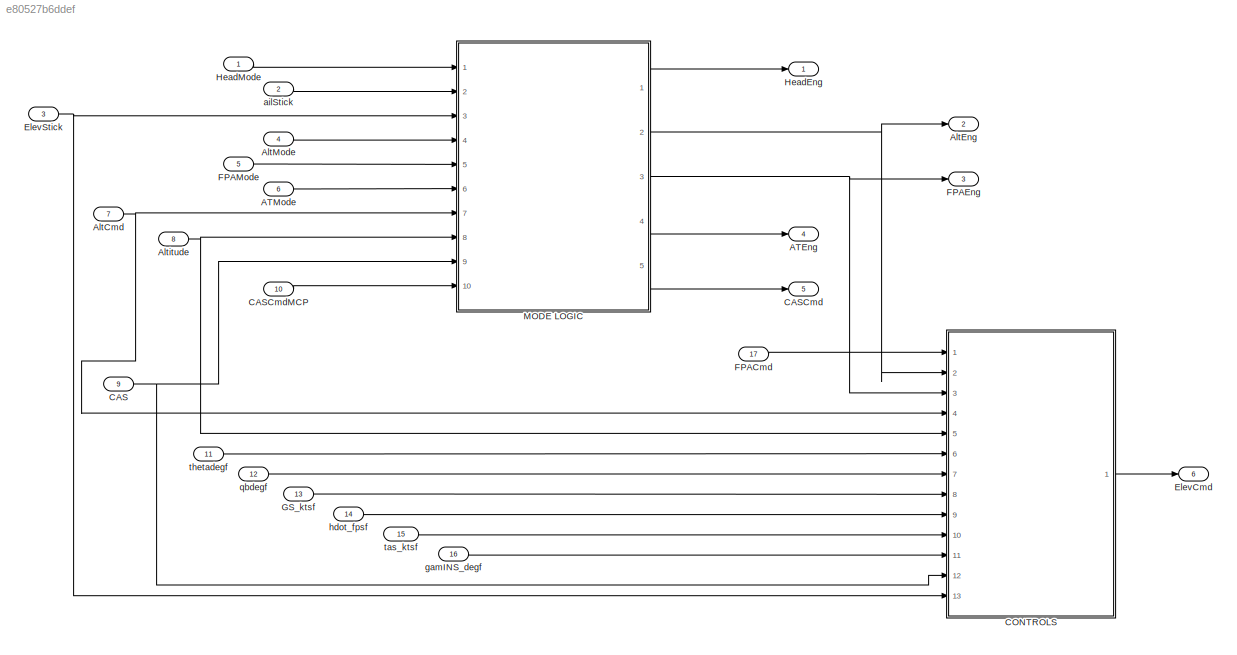
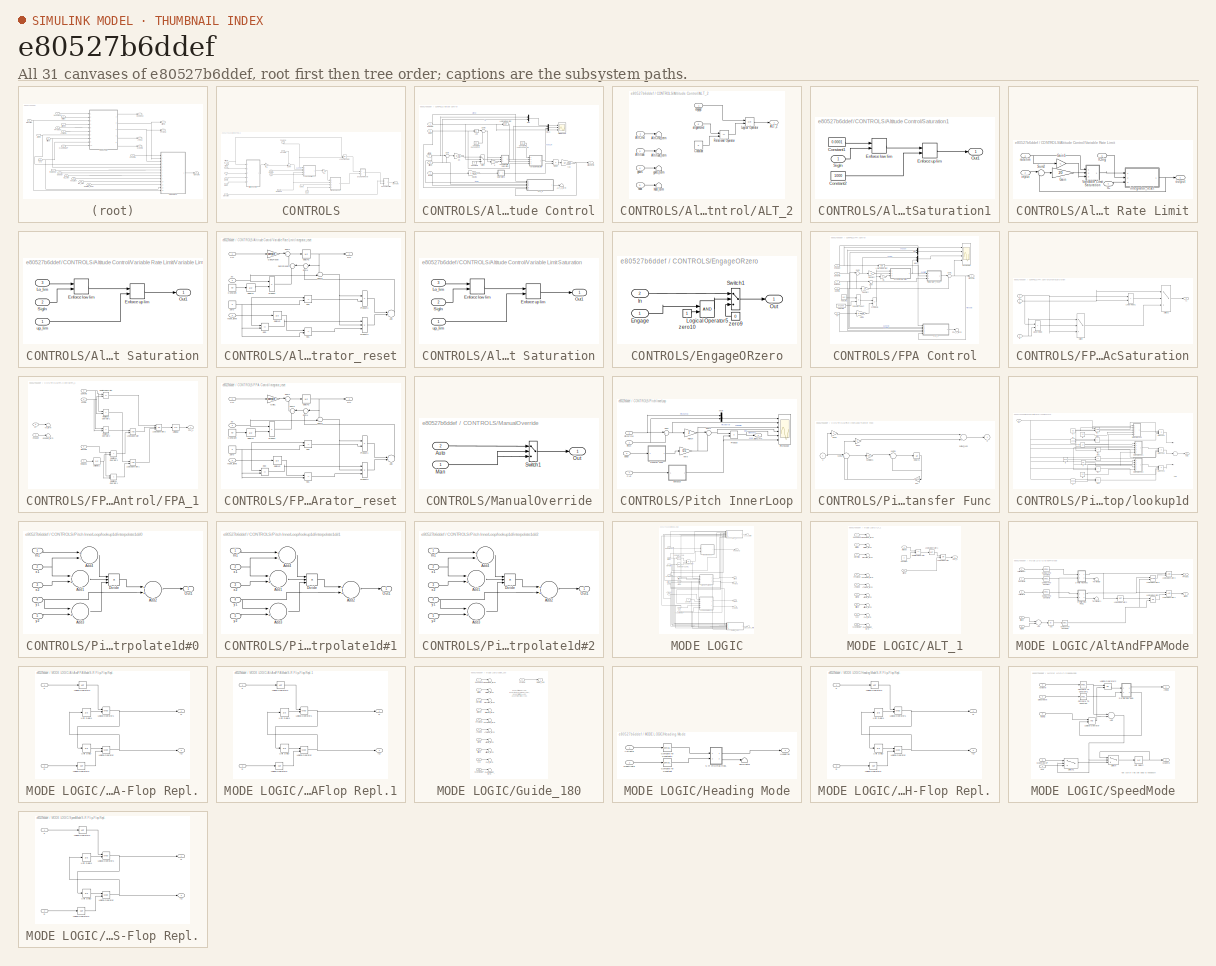
[diagram: thumbnail index - all 31 canvases of the model, root first then tree order]
MODEL slx_e80527b6ddef
KIND model
CONFIG AbsTol = auto
CONFIG FixedStep = auto
CONFIG MaxStep = auto
CONFIG MinStep = auto
CONFIG RelTol = 1e-3
CONFIG SampleTimeConstraint = Unconstrained
CONFIG Solver = ode45
CONFIG SolverMode = Auto
CONFIG SolverName = ode45
CONFIG StartTime = 0.0
CONFIG StopTime = 10.0
BLOCK [Outport] ATEng
  IconDisplay = Port number
  Port = 4
BLOCK [Inport] ATMode
  IconDisplay = Port number
  Port = 6
BLOCK [Inport] AltCmd
  IconDisplay = Port number
  Port = 7
BLOCK [Outport] AltEng
  IconDisplay = Port number
  Port = 2
BLOCK [Inport] AltMode
  IconDisplay = Port number
  Port = 4
BLOCK [Inport] Altitude
  IconDisplay = Port number
  Port = 8
BLOCK [Inport] CAS
  IconDisplay = Port number
  Port = 9
BLOCK [Outport] CASCmd
  IconDisplay = Port number
  Port = 5
BLOCK [Inport] CASCmdMCP
  IconDisplay = Port number
  Port = 10
BLOCK [SubSystem] CONTROLS
  Ports = [13, 1]
  RequestExecContextInheritance = off
  TreatAsAtomicUnit = on
BLOCK [Inport] CONTROLS/Alt
  IconDisplay = Port number
  Port = 5
BLOCK [Inport] CONTROLS/AltCmd
  IconDisplay = Port number
  Port = 4
BLOCK [Inport] CONTROLS/AltEng
  IconDisplay = Port number
  Port = 2
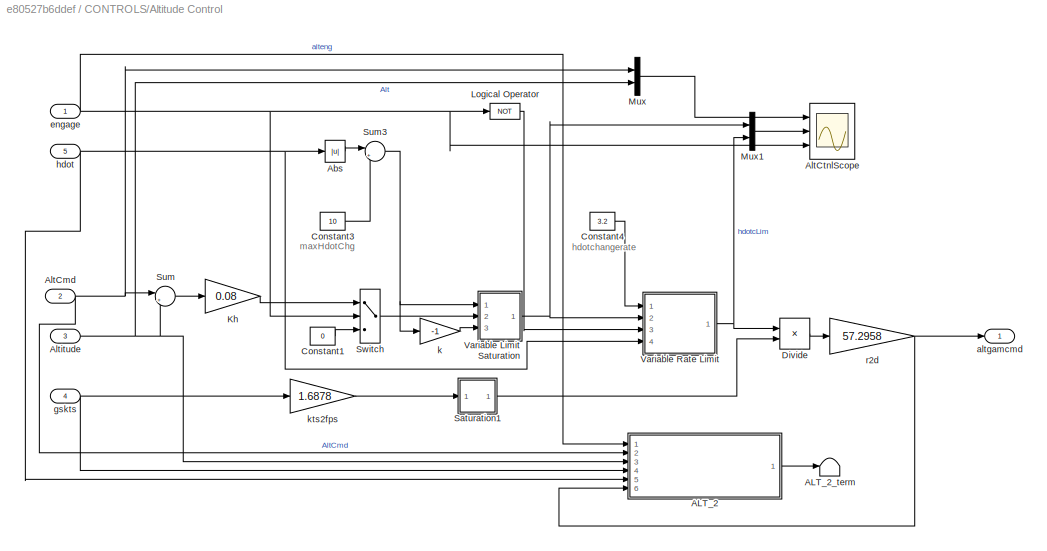
BLOCK [SubSystem] CONTROLS/Altitude Control
  Ports = [5, 1]
  RequestExecContextInheritance = off
  TreatAsAtomicUnit = on
BLOCK [SubSystem] CONTROLS/Altitude Control/ALT_2
  Ports = [6, 1]
  RequestExecContextInheritance = off
  TreatAsAtomicUnit = on
BLOCK [Outport] CONTROLS/Altitude Control/ALT_2/ALT_2
  IconDisplay = Port number
BLOCK [Inport] CONTROLS/Altitude Control/ALT_2/AltCmd
  IconDisplay = Port number
  Port = 2
BLOCK [Terminator] CONTROLS/Altitude Control/ALT_2/AltCmd_term
BLOCK [Inport] CONTROLS/Altitude Control/ALT_2/Altitude
  IconDisplay = Port number
  Port = 3
BLOCK [Terminator] CONTROLS/Altitude Control/ALT_2/Altitude_term
BLOCK [Constant] CONTROLS/Altitude Control/ALT_2/Constant
  Value = 0
BLOCK [Logic] CONTROLS/Altitude Control/ALT_2/Logical Operator
  AllPortsSameDT = off
  Operator = OR
  OutDataTypeStr = boolean
  Ports = [2, 1]
BLOCK [RelationalOperator] CONTROLS/Altitude Control/ALT_2/Relational Operator
  InputSameDT = off
  Operator = ==
  OutDataTypeStr = boolean
  Ports = [2, 1]
BLOCK [Inport] CONTROLS/Altitude Control/ALT_2/altgamcmd
  IconDisplay = Port number
  Port = 6
BLOCK [Inport] CONTROLS/Altitude Control/ALT_2/engage
  IconDisplay = Port number
BLOCK [Inport] CONTROLS/Altitude Control/ALT_2/gskts
  IconDisplay = Port number
  Port = 4
BLOCK [Terminator] CONTROLS/Altitude Control/ALT_2/gskts_term
BLOCK [Inport] CONTROLS/Altitude Control/ALT_2/hdot
  IconDisplay = Port number
  Port = 5
BLOCK [Terminator] CONTROLS/Altitude Control/ALT_2/hdot_term
BLOCK [Terminator] CONTROLS/Altitude Control/ALT_2_term
BLOCK [Abs] CONTROLS/Altitude Control/Abs
BLOCK [Inport] CONTROLS/Altitude Control/AltCmd
  IconDisplay = Port number
  Port = 2
BLOCK [Scope] CONTROLS/Altitude Control/AltCtnlScope
  DataFormat = StructureWithTime
  Floating = off
  LimitDataPoints = off
  NumInputPorts = 3
  Ports = [3]
  SampleTime = 0
  SaveName = ScopeData3
  TimeRange = 30
  YMax = 10200~15~1
  YMin = 10000~-5~0
BLOCK [Inport] CONTROLS/Altitude Control/Altitude
  IconDisplay = Port number
  Port = 3
BLOCK [Constant] CONTROLS/Altitude Control/Constant1
  Value = 0
BLOCK [Constant] CONTROLS/Altitude Control/Constant3
  Value = 10
BLOCK [Constant] CONTROLS/Altitude Control/Constant4
  Value = 3.2
BLOCK [Product] CONTROLS/Altitude Control/Divide
  InputSameDT = off
  Inputs = */
  OutDataTypeStr = Inherit: Inherit via internal rule
  Ports = [2, 1]
  RndMeth = Floor
  SaturateOnIntegerOverflow = off
BLOCK [Gain] CONTROLS/Altitude Control/Kh
  Gain = 0.08
  OutDataTypeStr = Inherit: Inherit via internal rule
  ParamDataTypeStr = Inherit: Inherit via internal rule
  SaturateOnIntegerOverflow = off
BLOCK [Logic] CONTROLS/Altitude Control/Logical Operator
  Operator = NOT
  Ports = [1, 1]
BLOCK [Mux] CONTROLS/Altitude Control/Mux
  DisplayOption = bar
  Inputs = 2
  Ports = [2, 1]
BLOCK [Mux] CONTROLS/Altitude Control/Mux1
  DisplayOption = bar
  Inputs = 2
  Ports = [2, 1]
BLOCK [SubSystem] CONTROLS/Altitude Control/Saturation1
  Ports = [1, 1]
  RequestExecContextInheritance = off
  TreatAsAtomicUnit = on
BLOCK [Constant] CONTROLS/Altitude Control/Saturation1/Constant1
  Value = 0.0001
BLOCK [Constant] CONTROLS/Altitude Control/Saturation1/Constant2
  Value = 1000
BLOCK [MinMax] CONTROLS/Altitude Control/Saturation1/Enforce low lim
  Function = max
  InputSameDT = off
  Inputs = 2
  Ports = [2, 1]
  SaturateOnIntegerOverflow = off
BLOCK [MinMax] CONTROLS/Altitude Control/Saturation1/Enforce up lim
  InputSameDT = off
  Inputs = 2
  Ports = [2, 1]
  SaturateOnIntegerOverflow = off
BLOCK [Outport] CONTROLS/Altitude Control/Saturation1/Out1
  IconDisplay = Port number
BLOCK [Inport] CONTROLS/Altitude Control/Saturation1/SigIn
  IconDisplay = Port number
BLOCK [Sum] CONTROLS/Altitude Control/Sum
  IconShape = round
  InputSameDT = off
  Inputs = |+-
  OutDataTypeStr = Inherit: Inherit via internal rule
  Ports = [2, 1]
  SaturateOnIntegerOverflow = off
BLOCK [Sum] CONTROLS/Altitude Control/Sum3
  IconShape = round
  Inputs = |++
  Ports = [2, 1]
BLOCK [Switch] CONTROLS/Altitude Control/Switch
  InputSameDT = off
  SaturateOnIntegerOverflow = off
BLOCK [SubSystem] CONTROLS/Altitude Control/Variable Limit Saturation
  Ports = [3, 1]
  RequestExecContextInheritance = off
  TreatAsAtomicUnit = on
BLOCK [MinMax] CONTROLS/Altitude Control/Variable Limit Saturation/Enforce low lim
  Function = max
  InputSameDT = off
  Inputs = 2
  Ports = [2, 1]
  SaturateOnIntegerOverflow = off
BLOCK [MinMax] CONTROLS/Altitude Control/Variable Limit Saturation/Enforce up lim
  InputSameDT = off
  Inputs = 2
  Ports = [2, 1]
  SaturateOnIntegerOverflow = off
BLOCK [Inport] CONTROLS/Altitude Control/Variable Limit Saturation/Lo_lim
  IconDisplay = Port number
  Port = 3
BLOCK [Outport] CONTROLS/Altitude Control/Variable Limit Saturation/Out1
  IconDisplay = Port number
BLOCK [Inport] CONTROLS/Altitude Control/Variable Limit Saturation/SigIn
  IconDisplay = Port number
  Port = 2
BLOCK [Inport] CONTROLS/Altitude Control/Variable Limit Saturation/up_lim
  IconDisplay = Port number
BLOCK [SubSystem] CONTROLS/Altitude Control/Variable Rate Limit
  Ports = [4, 1]
  RequestExecContextInheritance = off
  TreatAsAtomicUnit = on
BLOCK [Gain] CONTROLS/Altitude Control/Variable Rate Limit/Gain
  Gain = 20
BLOCK [Gain] CONTROLS/Altitude Control/Variable Rate Limit/Gain1
  Gain = -1
BLOCK [Inport] CONTROLS/Altitude Control/Variable Rate Limit/IC
  IconDisplay = Port number
  Port = 4
BLOCK [Inport] CONTROLS/Altitude Control/Variable Rate Limit/ICtrig
  IconDisplay = Port number
  Port = 3
BLOCK [Sum] CONTROLS/Altitude Control/Variable Rate Limit/Sum2
  IconShape = round
  InputSameDT = off
  Inputs = |+-
  OutDataTypeStr = Inherit: Inherit via internal rule
  Ports = [2, 1]
BLOCK [SubSystem] CONTROLS/Altitude Control/Variable Rate Limit/Variable Limit Saturation
  Ports = [3, 1]
  RequestExecContextInheritance = off
  TreatAsAtomicUnit = on
BLOCK [MinMax] CONTROLS/Altitude Control/Variable Rate Limit/Variable Limit Saturation/Enforce low lim
  Function = max
  InputSameDT = off
  Inputs = 2
  Ports = [2, 1]
  SaturateOnIntegerOverflow = off
BLOCK [MinMax] CONTROLS/Altitude Control/Variable Rate Limit/Variable Limit Saturation/Enforce up lim
  InputSameDT = off
  Inputs = 2
  Ports = [2, 1]
  SaturateOnIntegerOverflow = off
BLOCK [Inport] CONTROLS/Altitude Control/Variable Rate Limit/Variable Limit Saturation/Lo_lim
  IconDisplay = Port number
  Port = 3
BLOCK [Outport] CONTROLS/Altitude Control/Variable Rate Limit/Variable Limit Saturation/Out1
  IconDisplay = Port number
BLOCK [Inport] CONTROLS/Altitude Control/Variable Rate Limit/Variable Limit Saturation/SigIn
  IconDisplay = Port number
  Port = 2
BLOCK [Inport] CONTROLS/Altitude Control/Variable Rate Limit/Variable Limit Saturation/up_lim
  IconDisplay = Port number
BLOCK [Inport] CONTROLS/Altitude Control/Variable Rate Limit/input
  IconDisplay = Port number
  OutDataTypeStr = double
  Port = 2
BLOCK [SubSystem] CONTROLS/Altitude Control/Variable Rate Limit/integrator_reset
  Ports = [3, 1]
  RequestExecContextInheritance = off
BLOCK [Sum] CONTROLS/Altitude Control/Variable Rate Limit/integrator_reset/Add
  InputSameDT = off
  OutDataTypeStr = Inherit: Inherit via internal rule
  Ports = [2, 1]
  SaturateOnIntegerOverflow = off
BLOCK [Constant] CONTROLS/Altitude Control/Variable Rate Limit/integrator_reset/Constant
  SampleTime = sample
  Value = 0.0
BLOCK [Outport] CONTROLS/Altitude Control/Variable Rate Limit/integrator_reset/F(x)
  IconDisplay = Port number
BLOCK [Gain] CONTROLS/Altitude Control/Variable Rate Limit/integrator_reset/Gain1Reset
  Gain = sample
  OutDataTypeStr = Inherit: Inherit via internal rule
  ParamDataTypeStr = Inherit: Inherit via internal rule
  SaturateOnIntegerOverflow = off
BLOCK [Product] CONTROLS/Altitude Control/Variable Rate Limit/integrator_reset/Product
  InputSameDT = off
  OutDataTypeStr = Inherit: Inherit via internal rule
  Ports = [2, 1]
  SaturateOnIntegerOverflow = off
BLOCK [Product] CONTROLS/Altitude Control/Variable Rate Limit/integrator_reset/Product1
  InputSameDT = off
  OutDataTypeStr = double
  Ports = [2, 1]
  SaturateOnIntegerOverflow = off
BLOCK [Product] CONTROLS/Altitude Control/Variable Rate Limit/integrator_reset/Product2
  InputSameDT = off
  Inputs = 3
  OutDataTypeStr = double
  Ports = [3, 1]
  SaturateOnIntegerOverflow = off
BLOCK [Sum] CONTROLS/Altitude Control/Variable Rate Limit/integrator_reset/Sum1
  IconShape = round
  InputSameDT = off
  Inputs = |++
  OutDataTypeStr = Inherit: Inherit via internal rule
  Ports = [2, 1]
  SaturateOnIntegerOverflow = off
BLOCK [Sum] CONTROLS/Altitude Control/Variable Rate Limit/integrator_reset/Sum2Reset
  IconShape = round
  InputSameDT = off
  Inputs = |++
  OutDataTypeStr = Inherit: Inherit via internal rule
  Ports = [2, 1]
  SaturateOnIntegerOverflow = off
BLOCK [Sum] CONTROLS/Altitude Control/Variable Rate Limit/integrator_reset/Sum3
  IconShape = round
  InputSameDT = off
  Inputs = -+|
  OutDataTypeStr = Inherit: Inherit via internal rule
  Ports = [2, 1]
  SaturateOnIntegerOverflow = off
BLOCK [Sum] CONTROLS/Altitude Control/Variable Rate Limit/integrator_reset/Sum4
  IconShape = round
  InputSameDT = off
  Inputs = |++
  OutDataTypeStr = Inherit: Inherit via internal rule
  Ports = [2, 1]
  SaturateOnIntegerOverflow = off
BLOCK [UnitDelay] CONTROLS/Altitude Control/Variable Rate Limit/integrator_reset/delay#1
  InitialCondition = 1.0
  SampleTime = -1
BLOCK [UnitDelay] CONTROLS/Altitude Control/Variable Rate Limit/integrator_reset/delay#2
  InitialCondition = 0.0
  SampleTime = -1
BLOCK [UnitDelay] CONTROLS/Altitude Control/Variable Rate Limit/integrator_reset/delay#3
  InitialCondition = 0.0
  SampleTime = -1
BLOCK [RelationalOperator] CONTROLS/Altitude Control/Variable Rate Limit/integrator_reset/eq0
  InputSameDT = off
  Operator = ==
  OutDataTypeStr = boolean
  Ports = [2, 1]
BLOCK [Inport] CONTROLS/Altitude Control/Variable Rate Limit/integrator_reset/f(x)
  IconDisplay = Port number
  OutDataTypeStr = double
  PortDimensions = 1
  SampleTime = sample
  SignalType = real
BLOCK [RelationalOperator] CONTROLS/Altitude Control/Variable Rate Limit/integrator_reset/ne0
  InputSameDT = off
  Operator = ~=
  OutDataTypeStr = boolean
  Ports = [2, 1]
BLOCK [RelationalOperator] CONTROLS/Altitude Control/Variable Rate Limit/integrator_reset/ne1
  InputSameDT = off
  Operator = ~=
  OutDataTypeStr = boolean
  Ports = [2, 1]
BLOCK [Inport] CONTROLS/Altitude Control/Variable Rate Limit/integrator_reset/reset_level
  IconDisplay = Port number
  OutDataTypeStr = boolean
  Port = 2
  PortDimensions = 1
  SampleTime = sample
BLOCK [Inport] CONTROLS/Altitude Control/Variable Rate Limit/integrator_reset/x0
  IconDisplay = Port number
  OutDataTypeStr = double
  Port = 3
  PortDimensions = 1
  SampleTime = sample
  SignalType = real
BLOCK [Constant] CONTROLS/Altitude Control/Variable Rate Limit/integrator_reset/zero
  SampleTime = sample
  Value = 0
BLOCK [Outport] CONTROLS/Altitude Control/Variable Rate Limit/output
  IconDisplay = Port number
BLOCK [Inport] CONTROLS/Altitude Control/Variable Rate Limit/ratelim
  IconDisplay = Port number
BLOCK [Outport] CONTROLS/Altitude Control/altgamcmd
  IconDisplay = Port number
BLOCK [Inport] CONTROLS/Altitude Control/engage
  IconDisplay = Port number
BLOCK [Inport] CONTROLS/Altitude Control/gskts
  IconDisplay = Port number
  Port = 4
BLOCK [Inport] CONTROLS/Altitude Control/hdot
  IconDisplay = Port number
  Port = 5
BLOCK [Gain] CONTROLS/Altitude Control/k
  Gain = -1
  OutDataTypeStr = Inherit: Inherit via internal rule
  ParamDataTypeStr = Inherit: Inherit via internal rule
  SaturateOnIntegerOverflow = off
BLOCK [Gain] CONTROLS/Altitude Control/kts2fps
  Gain = 1.6878
  OutDataTypeStr = Inherit: Inherit via internal rule
  ParamDataTypeStr = Inherit: Inherit via internal rule
  SaturateOnIntegerOverflow = off
BLOCK [Gain] CONTROLS/Altitude Control/r2d
  Gain = 57.2958
  OutDataTypeStr = Inherit: Inherit via internal rule
  ParamDataTypeStr = Inherit: Inherit via internal rule
  SaturateOnIntegerOverflow = off
BLOCK [Inport] CONTROLS/CAS
  IconDisplay = Port number
  Port = 12
BLOCK [Outport] CONTROLS/ElevCmd
  IconDisplay = Port number
BLOCK [Inport] CONTROLS/ElevStick
  IconDisplay = Port number
  Port = 13
BLOCK [SubSystem] CONTROLS/EngageORzero
  Ports = [2, 1]
  RequestExecContextInheritance = off
  TreatAsAtomicUnit = on
BLOCK [Inport] CONTROLS/EngageORzero/Engage
  IconDisplay = Port number
BLOCK [Inport] CONTROLS/EngageORzero/In
  IconDisplay = Port number
  Port = 2
BLOCK [Logic] CONTROLS/EngageORzero/Logical Operator5
  AllPortsSameDT = off
  OutDataTypeStr = boolean
  Ports = [2, 1]
BLOCK [Outport] CONTROLS/EngageORzero/Out
  IconDisplay = Port number
BLOCK [Switch] CONTROLS/EngageORzero/Switch1
  InputSameDT = off
  SaturateOnIntegerOverflow = off
  Threshold = 0.5
BLOCK [Constant] CONTROLS/EngageORzero/zero10
BLOCK [Constant] CONTROLS/EngageORzero/zero9
  Value = 0
BLOCK [SubSystem] CONTROLS/FPA Control
  Ports = [5, 1]
  RequestExecContextInheritance = off
  TreatAsAtomicUnit = on
BLOCK [SubSystem] CONTROLS/FPA Control/DynamicSaturation
  Ports = [3, 1]
  RequestExecContextInheritance = off
  TreatAsAtomicUnit = on
BLOCK [RelationalOperator] CONTROLS/FPA Control/DynamicSaturation/LowerRelop1
  DisableCoverage = on
  InputSameDT = off
  Operator = >
  OutDataTypeStr = boolean
  Ports = [2, 1]
BLOCK [Switch] CONTROLS/FPA Control/DynamicSaturation/Switch
  Criteria = u2 ~= 0
  InputSameDT = off
  OutDataTypeStr = Inherit: Inherit via back propagation
  SaturateOnIntegerOverflow = off
  ZeroCross = off
BLOCK [Switch] CONTROLS/FPA Control/DynamicSaturation/Switch2
  Criteria = u2 ~= 0
  InputSameDT = off
  OutDataTypeStr = Inherit: Inherit via back propagation
  SaturateOnIntegerOverflow = off
  ZeroCross = off
BLOCK [RelationalOperator] CONTROLS/FPA Control/DynamicSaturation/UpperRelop
  DisableCoverage = on
  InputSameDT = off
  Operator = <
  OutDataTypeStr = boolean
  Ports = [2, 1]
BLOCK [Inport] CONTROLS/FPA Control/DynamicSaturation/lo
  IconDisplay = Port number
  Port = 3
BLOCK [Inport] CONTROLS/FPA Control/DynamicSaturation/u
  IconDisplay = Port number
  Port = 2
BLOCK [Inport] CONTROLS/FPA Control/DynamicSaturation/up
  IconDisplay = Port number
BLOCK [Outport] CONTROLS/FPA Control/DynamicSaturation/y1
  IconDisplay = Port number
BLOCK [Scope] CONTROLS/FPA Control/FPAScope
  DataFormat = StructureWithTime
  Floating = off
  LimitDataPoints = off
  NumInputPorts = 4
  Ports = [4]
  SampleTime = 0
  SaveName = ScopeData1
  YMax = 2~5~2~10
  YMin = -1~-5~-2~-5
BLOCK [SubSystem] CONTROLS/FPA Control/FPA_1
  Ports = [6, 1]
  RequestExecContextInheritance = off
  TreatAsAtomicUnit = on
BLOCK [Outport] CONTROLS/FPA Control/FPA_1/FPA_1
  IconDisplay = Port number
BLOCK [Logic] CONTROLS/FPA Control/FPA_1/Logical Operator
  AllPortsSameDT = off
  OutDataTypeStr = boolean
  Ports = [2, 1]
BLOCK [Logic] CONTROLS/FPA Control/FPA_1/Logical Operator1
  AllPortsSameDT = off
  OutDataTypeStr = boolean
  Ports = [2, 1]
BLOCK [Logic] CONTROLS/FPA Control/FPA_1/Logical Operator2
  AllPortsSameDT = off
  Inputs = 3
  Operator = OR
  OutDataTypeStr = boolean
  Ports = [3, 1]
BLOCK [Inport] CONTROLS/FPA Control/FPA_1/PitchCmd
  IconDisplay = Port number
  Port = 6
BLOCK [RelationalOperator] CONTROLS/FPA Control/FPA_1/Relational Operator
  InputSameDT = off
  Operator = ==
  OutDataTypeStr = boolean
  Ports = [2, 1]
BLOCK [RelationalOperator] CONTROLS/FPA Control/FPA_1/Relational Operator1
  InputSameDT = off
  Operator = <
  OutDataTypeStr = boolean
  Ports = [2, 1]
BLOCK [RelationalOperator] CONTROLS/FPA Control/FPA_1/Relational Operator2
  InputSameDT = off
  Operator = >
  OutDataTypeStr = boolean
  Ports = [2, 1]
BLOCK [RelationalOperator] CONTROLS/FPA Control/FPA_1/Relational Operator3
  InputSameDT = off
  Operator = >
  OutDataTypeStr = boolean
  Ports = [2, 1]
BLOCK [RelationalOperator] CONTROLS/FPA Control/FPA_1/Relational Operator4
  InputSameDT = off
  Operator = <
  OutDataTypeStr = boolean
  Ports = [2, 1]
BLOCK [UnitDelay] CONTROLS/FPA Control/FPA_1/Unit Delay
  InitialCondition = true
  InputProcessing = Elements as channels (sample based)
  SampleTime = -1
BLOCK [UnitDelay] CONTROLS/FPA Control/FPA_1/Unit Delay1
  InitialCondition = true
  InputProcessing = Elements as channels (sample based)
  SampleTime = -1
BLOCK [Inport] CONTROLS/FPA Control/FPA_1/VT
  IconDisplay = Port number
  Port = 5
BLOCK [Terminator] CONTROLS/FPA Control/FPA_1/VT_term
BLOCK [Inport] CONTROLS/FPA Control/FPA_1/engage
  IconDisplay = Port number
BLOCK [Terminator] CONTROLS/FPA Control/FPA_1/engage_term
BLOCK [Inport] CONTROLS/FPA Control/FPA_1/gamcmd
  IconDisplay = Port number
  Port = 2
BLOCK [Inport] CONTROLS/FPA Control/FPA_1/gamma
  IconDisplay = Port number
  Port = 3
BLOCK [Inport] CONTROLS/FPA Control/FPA_1/thetadeg
  IconDisplay = Port number
  Port = 4
BLOCK [Terminator] CONTROLS/FPA Control/FPA_1_term
BLOCK [Gain] CONTROLS/FPA Control/KIgamerr
  OutDataTypeStr = Inherit: Inherit via internal rule
  ParamDataTypeStr = Inherit: Inherit via internal rule
  SaturateOnIntegerOverflow = off
BLOCK [Gain] CONTROLS/FPA Control/Kgamerr
  Gain = 1.4
  OutDataTypeStr = Inherit: Inherit via internal rule
  ParamDataTypeStr = Inherit: Inherit via internal rule
  SaturateOnIntegerOverflow = off
BLOCK [Logic] CONTROLS/FPA Control/Logical Operator
  AllPortsSameDT = off
  Operator = NOT
  OutDataTypeStr = boolean
  Ports = [1, 1]
BLOCK [Mux] CONTROLS/FPA Control/Mux
  DisplayOption = bar
  Inputs = 2
  Ports = [2, 1]
BLOCK [Mux] CONTROLS/FPA Control/Mux1
  DisplayOption = bar
  Inputs = 2
  Ports = [2, 1]
BLOCK [Outport] CONTROLS/FPA Control/PitchCmd
  IconDisplay = Port number
  OutDataTypeStr = double
BLOCK [Product] CONTROLS/FPA Control/Product1
  InputSameDT = off
  OutDataTypeStr = Inherit: Inherit via internal rule
  Ports = [2, 1]
  SaturateOnIntegerOverflow = off
BLOCK [Sum] CONTROLS/FPA Control/Sum
  IconShape = round
  InputSameDT = off
  Inputs = |++
  OutDataTypeStr = Inherit: Inherit via internal rule
  Ports = [2, 1]
  SaturateOnIntegerOverflow = off
BLOCK [Sum] CONTROLS/FPA Control/Sum1
  IconShape = round
  InputSameDT = off
  Inputs = |+-
  OutDataTypeStr = Inherit: Inherit via internal rule
  Ports = [2, 1]
  SaturateOnIntegerOverflow = off
BLOCK [Sum] CONTROLS/FPA Control/Sum2
  IconShape = round
  InputSameDT = off
  Inputs = |+-
  OutDataTypeStr = Inherit: Inherit via internal rule
  Ports = [2, 1]
  SaturateOnIntegerOverflow = off
BLOCK [Inport] CONTROLS/FPA Control/VT
  IconDisplay = Port number
  OutDataTypeStr = double
  Port = 5
BLOCK [Inport] CONTROLS/FPA Control/engage
  IconDisplay = Port number
  OutDataTypeStr = boolean
BLOCK [Inport] CONTROLS/FPA Control/gamcmd
  IconDisplay = Port number
  OutDataTypeStr = double
  Port = 2
BLOCK [Inport] CONTROLS/FPA Control/gamma
  IconDisplay = Port number
  OutDataTypeStr = double
  Port = 3
BLOCK [Constant] CONTROLS/FPA Control/hddLim1
  SampleTime = sample
  Value = 4.83
BLOCK [Constant] CONTROLS/FPA Control/hddLim2
  SampleTime = sample
  Value = 57.2958
BLOCK [Product] CONTROLS/FPA Control/hddLimProduct
  InputSameDT = off
  OutDataTypeStr = Inherit: Inherit via internal rule
  Ports = [2, 1]
  SaturateOnIntegerOverflow = off
BLOCK [SubSystem] CONTROLS/FPA Control/integrator_reset
  Ports = [3, 1]
  RequestExecContextInheritance = off
  TreatAsAtomicUnit = on
BLOCK [Sum] CONTROLS/FPA Control/integrator_reset/Add
  InputSameDT = off
  OutDataTypeStr = Inherit: Inherit via internal rule
  Ports = [2, 1]
  SaturateOnIntegerOverflow = off
BLOCK [Constant] CONTROLS/FPA Control/integrator_reset/Constant
  SampleTime = sample
  Value = 0.0
BLOCK [Outport] CONTROLS/FPA Control/integrator_reset/F(x)
  IconDisplay = Port number
BLOCK [Gain] CONTROLS/FPA Control/integrator_reset/Gain1
  Gain = sample
  OutDataTypeStr = Inherit: Inherit via internal rule
  ParamDataTypeStr = Inherit: Inherit via internal rule
  SaturateOnIntegerOverflow = off
BLOCK [Product] CONTROLS/FPA Control/integrator_reset/Product
  InputSameDT = off
  OutDataTypeStr = Inherit: Inherit via internal rule
  Ports = [2, 1]
  SaturateOnIntegerOverflow = off
BLOCK [Product] CONTROLS/FPA Control/integrator_reset/Product1
  InputSameDT = off
  OutDataTypeStr = Inherit: Inherit via internal rule
  Ports = [2, 1]
  SaturateOnIntegerOverflow = off
BLOCK [Product] CONTROLS/FPA Control/integrator_reset/Product2
  InputSameDT = off
  Inputs = 3
  OutDataTypeStr = Inherit: Inherit via internal rule
  Ports = [3, 1]
  SaturateOnIntegerOverflow = off
BLOCK [Sum] CONTROLS/FPA Control/integrator_reset/Sum1
  IconShape = round
  InputSameDT = off
  Inputs = |++
  OutDataTypeStr = Inherit: Inherit via internal rule
  Ports = [2, 1]
  SaturateOnIntegerOverflow = off
BLOCK [Sum] CONTROLS/FPA Control/integrator_reset/Sum2
  IconShape = round
  InputSameDT = off
  Inputs = |++
  OutDataTypeStr = Inherit: Inherit via internal rule
  Ports = [2, 1]
  SaturateOnIntegerOverflow = off
BLOCK [Sum] CONTROLS/FPA Control/integrator_reset/Sum3
  IconShape = round
  InputSameDT = off
  Inputs = -+|
  OutDataTypeStr = Inherit: Inherit via internal rule
  Ports = [2, 1]
  SaturateOnIntegerOverflow = off
BLOCK [Sum] CONTROLS/FPA Control/integrator_reset/Sum4
  IconShape = round
  InputSameDT = off
  Inputs = |++
  OutDataTypeStr = Inherit: Inherit via internal rule
  Ports = [2, 1]
  SaturateOnIntegerOverflow = off
BLOCK [UnitDelay] CONTROLS/FPA Control/integrator_reset/delay#1
  InitialCondition = 1.0
  SampleTime = -1
BLOCK [UnitDelay] CONTROLS/FPA Control/integrator_reset/delay#2
  InitialCondition = 0.0
  SampleTime = -1
BLOCK [UnitDelay] CONTROLS/FPA Control/integrator_reset/delay#3
  InitialCondition = 0.0
  SampleTime = -1
BLOCK [RelationalOperator] CONTROLS/FPA Control/integrator_reset/eq0
  InputSameDT = off
  Operator = ==
  OutDataTypeStr = boolean
  Ports = [2, 1]
BLOCK [Inport] CONTROLS/FPA Control/integrator_reset/f(x)
  IconDisplay = Port number
BLOCK [RelationalOperator] CONTROLS/FPA Control/integrator_reset/ne0
  InputSameDT = off
  Operator = ~=
  OutDataTypeStr = boolean
  Ports = [2, 1]
BLOCK [RelationalOperator] CONTROLS/FPA Control/integrator_reset/ne1
  InputSameDT = off
  Operator = ~=
  OutDataTypeStr = boolean
  Ports = [2, 1]
BLOCK [Inport] CONTROLS/FPA Control/integrator_reset/reset_level
  IconDisplay = Port number
  Port = 2
BLOCK [Inport] CONTROLS/FPA Control/integrator_reset/x0
  IconDisplay = Port number
  Port = 3
BLOCK [Constant] CONTROLS/FPA Control/integrator_reset/zero
  SampleTime = sample
  Value = 0
BLOCK [Gain] CONTROLS/FPA Control/kt2fps
  Gain = 1.6878
  OutDataTypeStr = Inherit: Inherit via internal rule
  ParamDataTypeStr = Inherit: Inherit via internal rule
  SaturateOnIntegerOverflow = off
BLOCK [Gain] CONTROLS/FPA Control/m1
  Gain = -1
  OutDataTypeStr = Inherit: Inherit via internal rule
  ParamDataTypeStr = Inherit: Inherit via internal rule
  SaturateOnIntegerOverflow = off
BLOCK [Inport] CONTROLS/FPA Control/thetadeg
  IconDisplay = Port number
  OutDataTypeStr = double
  Port = 4
BLOCK [Inport] CONTROLS/FPACmd
  IconDisplay = Port number
BLOCK [Inport] CONTROLS/FpaEng
  IconDisplay = Port number
  Port = 3
BLOCK [Inport] CONTROLS/Gamma
  IconDisplay = Port number
  Port = 11
BLOCK [Inport] CONTROLS/GsKts
  IconDisplay = Port number
  Port = 8
BLOCK [Logic] CONTROLS/Logical Operator
  AllPortsSameDT = off
  Operator = OR
  OutDataTypeStr = boolean
  Ports = [2, 1]
BLOCK [SubSystem] CONTROLS/ManualOverride
  Ports = [2, 1]
  RequestExecContextInheritance = off
  TreatAsAtomicUnit = on
BLOCK [Inport] CONTROLS/ManualOverride/Auto
  IconDisplay = Port number
  Port = 2
BLOCK [Inport] CONTROLS/ManualOverride/Man
  IconDisplay = Port number
BLOCK [Outport] CONTROLS/ManualOverride/Out
  IconDisplay = Port number
BLOCK [Switch] CONTROLS/ManualOverride/Switch1
  Criteria = u2 ~= 0
  InputSameDT = off
  SaturateOnIntegerOverflow = off
  Threshold = 0.5
BLOCK [SubSystem] CONTROLS/Pitch InnerLoop
  Ports = [4, 1]
  RequestExecContextInheritance = off
  TreatAsAtomicUnit = on
BLOCK [Inport] CONTROLS/Pitch InnerLoop/CAS
  IconDisplay = Port number
  OutDataTypeStr = double
  Port = 4
BLOCK [Outport] CONTROLS/Pitch InnerLoop/ElevCmd
  IconDisplay = Port number
BLOCK [Gain] CONTROLS/Pitch InnerLoop/Kpitch
  Gain = 2
  OutDataTypeStr = Inherit: Inherit via internal rule
  ParamDataTypeStr = Inherit: Inherit via internal rule
  SaturateOnIntegerOverflow = off
BLOCK [Gain] CONTROLS/Pitch InnerLoop/Kwo
  Gain = 0.5
  OutDataTypeStr = Inherit: Inherit via internal rule
  ParamDataTypeStr = Inherit: Inherit via internal rule
  SaturateOnIntegerOverflow = off
BLOCK [Mux] CONTROLS/Pitch InnerLoop/Mux
  DisplayOption = bar
  Inputs = 2
  Ports = [2, 1]
BLOCK [Inport] CONTROLS/Pitch InnerLoop/Pitch
  IconDisplay = Port number
  OutDataTypeStr = double
  Port = 2
BLOCK [Inport] CONTROLS/Pitch InnerLoop/PitchCmd
  IconDisplay = Port number
  OutDataTypeStr = double
BLOCK [Scope] CONTROLS/Pitch InnerLoop/PitchScope
  DataFormat = StructureWithTime
  Floating = off
  LimitDataPoints = off
  NumInputPorts = 6
  Ports = [6]
  SampleTime = 0
  SaveName = ScopeData2
  YMax = 10~2~2~20~20~1.2
  YMin = -2~-2~-2~-20~-20~0
BLOCK [Product] CONTROLS/Pitch InnerLoop/Product
  InputSameDT = off
  OutDataTypeStr = Inherit: Inherit via internal rule
  Ports = [2, 1]
  SaturateOnIntegerOverflow = off
BLOCK [Sum] CONTROLS/Pitch InnerLoop/Sum
  IconShape = round
  InputSameDT = off
  Inputs = |+-
  OutDataTypeStr = Inherit: Inherit via internal rule
  Ports = [2, 1]
  SaturateOnIntegerOverflow = off
BLOCK [Sum] CONTROLS/Pitch InnerLoop/Sum1
  IconShape = round
  InputSameDT = off
  Inputs = |-+
  OutDataTypeStr = Inherit: Inherit via internal rule
  Ports = [2, 1]
  SaturateOnIntegerOverflow = off
BLOCK [SubSystem] CONTROLS/Pitch InnerLoop/Transfer Func
  Ports = [1, 1]
  RequestExecContextInheritance = off
  TreatAsAtomicUnit = on
BLOCK [Gain] CONTROLS/Pitch InnerLoop/Transfer Func/a#1
  Gain = 0.0625
  OutDataTypeStr = Inherit: Inherit via internal rule
  ParamDataTypeStr = Inherit: Inherit via internal rule
  SaturateOnIntegerOverflow = off
BLOCK [Gain] CONTROLS/Pitch InnerLoop/Transfer Func/b0#0
  OutDataTypeStr = Inherit: Inherit via internal rule
  ParamDataTypeStr = Inherit: Inherit via internal rule
  SaturateOnIntegerOverflow = off
BLOCK [Gain] CONTROLS/Pitch InnerLoop/Transfer Func/b0#1
  Gain = -1
  OutDataTypeStr = Inherit: Inherit via internal rule
  ParamDataTypeStr = Inherit: Inherit via internal rule
  SaturateOnIntegerOverflow = off
BLOCK [UnitDelay] CONTROLS/Pitch InnerLoop/Transfer Func/delay#1
  InitialCondition = 0.0
  SampleTime = -1
BLOCK [Sum] CONTROLS/Pitch InnerLoop/Transfer Func/output_sum
  InputSameDT = off
  OutDataTypeStr = Inherit: Inherit via internal rule
  Ports = [2, 1]
  SaturateOnIntegerOverflow = off
BLOCK [Gain] CONTROLS/Pitch InnerLoop/Transfer Func/sample#1
  Gain = 0.02
  OutDataTypeStr = Inherit: Inherit via internal rule
  ParamDataTypeStr = Inherit: Inherit via internal rule
  SaturateOnIntegerOverflow = off
BLOCK [Sum] CONTROLS/Pitch InnerLoop/Transfer Func/sum11
  IconShape = round
  InputSameDT = off
  Inputs = |+-
  OutDataTypeStr = Inherit: Inherit via internal rule
  Ports = [2, 1]
  SaturateOnIntegerOverflow = off
BLOCK [Sum] CONTROLS/Pitch InnerLoop/Transfer Func/sum21
  IconShape = round
  InputSameDT = off
  Inputs = |++
  OutDataTypeStr = Inherit: Inherit via internal rule
  Ports = [2, 1]
  SaturateOnIntegerOverflow = off
BLOCK [Inport] CONTROLS/Pitch InnerLoop/Transfer Func/u
  IconDisplay = Port number
  OutDataTypeStr = double
  PortDimensions = 1
  SampleTime = dt
  SamplingMode = Sample based
  SignalType = real
BLOCK [Outport] CONTROLS/Pitch InnerLoop/Transfer Func/y
  IconDisplay = Port number
BLOCK [SubSystem] CONTROLS/Pitch InnerLoop/lookup1d
  Ports = [1, 1]
  RequestExecContextInheritance = off
  TreatAsAtomicUnit = on
BLOCK [Sum] CONTROLS/Pitch InnerLoop/lookup1d/Add
  InputSameDT = off
  Inputs = +++
  OutDataTypeStr = Inherit: Inherit via internal rule
  Ports = [3, 1]
  SaturateOnIntegerOverflow = off
BLOCK [Inport] CONTROLS/Pitch InnerLoop/lookup1d/In1
  IconDisplay = Port number
  OutDataTypeStr = double
BLOCK [Outport] CONTROLS/Pitch InnerLoop/lookup1d/Out1
  IconDisplay = Port number
BLOCK [Product] CONTROLS/Pitch InnerLoop/lookup1d/branch#1
  InputSameDT = off
  Inputs = 3
  OutDataTypeStr = Inherit: Inherit via internal rule
  Ports = [3, 1]
  SaturateOnIntegerOverflow = off
BLOCK [Product] CONTROLS/Pitch InnerLoop/lookup1d/branch#2
  InputSameDT = off
  Inputs = 3
  OutDataTypeStr = Inherit: Inherit via internal rule
  Ports = [3, 1]
  SaturateOnIntegerOverflow = off
BLOCK [Product] CONTROLS/Pitch InnerLoop/lookup1d/branch#3
  InputSameDT = off
  Inputs = 3
  OutDataTypeStr = Inherit: Inherit via internal rule
  Ports = [3, 1]
  SaturateOnIntegerOverflow = off
BLOCK [RelationalOperator] CONTROLS/Pitch InnerLoop/lookup1d/gte1
  InputSameDT = off
  Operator = <=
  OutDataTypeStr = boolean
  Ports = [2, 1]
  SampleTime = sample
BLOCK [RelationalOperator] CONTROLS/Pitch InnerLoop/lookup1d/gte2
  InputSameDT = off
  Operator = <=
  OutDataTypeStr = boolean
  Ports = [2, 1]
  SampleTime = sample
BLOCK [RelationalOperator] CONTROLS/Pitch InnerLoop/lookup1d/gte3
  InputSameDT = off
  Operator = <=
  OutDataTypeStr = boolean
  Ports = [2, 1]
  SampleTime = sample
BLOCK [SubSystem] CONTROLS/Pitch InnerLoop/lookup1d/interpolate1d#0
  Ports = [5, 1]
  RequestExecContextInheritance = off
  TreatAsAtomicUnit = on
BLOCK [Sum] CONTROLS/Pitch InnerLoop/lookup1d/interpolate1d#0/Add1
  InputSameDT = off
  Inputs = -+
  OutDataTypeStr = Inherit: Inherit via internal rule
  Ports = [2, 1]
  SaturateOnIntegerOverflow = off
BLOCK [Sum] CONTROLS/Pitch InnerLoop/lookup1d/interpolate1d#0/Add2
  InputSameDT = off
  OutDataTypeStr = Inherit: Inherit via internal rule
  Ports = [2, 1]
  SaturateOnIntegerOverflow = off
BLOCK [Sum] CONTROLS/Pitch InnerLoop/lookup1d/interpolate1d#0/Add3
  InputSameDT = off
  Inputs = -+
  OutDataTypeStr = Inherit: Inherit via internal rule
  Ports = [2, 1]
  SaturateOnIntegerOverflow = off
BLOCK [Sum] CONTROLS/Pitch InnerLoop/lookup1d/interpolate1d#0/Add4
  InputSameDT = off
  Inputs = +-
  OutDataTypeStr = Inherit: Inherit via internal rule
  Ports = [2, 1]
  SaturateOnIntegerOverflow = off
BLOCK [Product] CONTROLS/Pitch InnerLoop/lookup1d/interpolate1d#0/Divide
  InputSameDT = off
  Inputs = */*
  OutDataTypeStr = Inherit: Inherit via internal rule
  Ports = [3, 1]
  RndMeth = Floor
  SaturateOnIntegerOverflow = off
BLOCK [Inport] CONTROLS/Pitch InnerLoop/lookup1d/interpolate1d#0/In1
  IconDisplay = Port number
BLOCK [Outport] CONTROLS/Pitch InnerLoop/lookup1d/interpolate1d#0/Out1
  IconDisplay = Port number
BLOCK [Inport] CONTROLS/Pitch InnerLoop/lookup1d/interpolate1d#0/x1
  IconDisplay = Port number
  Port = 2
BLOCK [Inport] CONTROLS/Pitch InnerLoop/lookup1d/interpolate1d#0/x2
  IconDisplay = Port number
  Port = 3
BLOCK [Inport] CONTROLS/Pitch InnerLoop/lookup1d/interpolate1d#0/y1
  IconDisplay = Port number
  Port = 4
BLOCK [Inport] CONTROLS/Pitch InnerLoop/lookup1d/interpolate1d#0/y2
  IconDisplay = Port number
  Port = 5
BLOCK [SubSystem] CONTROLS/Pitch InnerLoop/lookup1d/interpolate1d#1
  Ports = [5, 1]
  RequestExecContextInheritance = off
  TreatAsAtomicUnit = on
BLOCK [Sum] CONTROLS/Pitch InnerLoop/lookup1d/interpolate1d#1/Add1
  InputSameDT = off
  Inputs = -+
  OutDataTypeStr = Inherit: Inherit via internal rule
  Ports = [2, 1]
  SaturateOnIntegerOverflow = off
BLOCK [Sum] CONTROLS/Pitch InnerLoop/lookup1d/interpolate1d#1/Add2
  InputSameDT = off
  OutDataTypeStr = Inherit: Inherit via internal rule
  Ports = [2, 1]
  SaturateOnIntegerOverflow = off
BLOCK [Sum] CONTROLS/Pitch InnerLoop/lookup1d/interpolate1d#1/Add3
  InputSameDT = off
  Inputs = -+
  OutDataTypeStr = Inherit: Inherit via internal rule
  Ports = [2, 1]
  SaturateOnIntegerOverflow = off
BLOCK [Sum] CONTROLS/Pitch InnerLoop/lookup1d/interpolate1d#1/Add4
  InputSameDT = off
  Inputs = +-
  OutDataTypeStr = Inherit: Inherit via internal rule
  Ports = [2, 1]
  SaturateOnIntegerOverflow = off
BLOCK [Product] CONTROLS/Pitch InnerLoop/lookup1d/interpolate1d#1/Divide
  InputSameDT = off
  Inputs = */*
  OutDataTypeStr = Inherit: Inherit via internal rule
  Ports = [3, 1]
  RndMeth = Floor
  SaturateOnIntegerOverflow = off
BLOCK [Inport] CONTROLS/Pitch InnerLoop/lookup1d/interpolate1d#1/In1
  IconDisplay = Port number
BLOCK [Outport] CONTROLS/Pitch InnerLoop/lookup1d/interpolate1d#1/Out1
  IconDisplay = Port number
BLOCK [Inport] CONTROLS/Pitch InnerLoop/lookup1d/interpolate1d#1/x1
  IconDisplay = Port number
  Port = 2
BLOCK [Inport] CONTROLS/Pitch InnerLoop/lookup1d/interpolate1d#1/x2
  IconDisplay = Port number
  Port = 3
BLOCK [Inport] CONTROLS/Pitch InnerLoop/lookup1d/interpolate1d#1/y1
  IconDisplay = Port number
  Port = 4
BLOCK [Inport] CONTROLS/Pitch InnerLoop/lookup1d/interpolate1d#1/y2
  IconDisplay = Port number
  Port = 5
BLOCK [SubSystem] CONTROLS/Pitch InnerLoop/lookup1d/interpolate1d#2
  Ports = [5, 1]
  RequestExecContextInheritance = off
  TreatAsAtomicUnit = on
BLOCK [Sum] CONTROLS/Pitch InnerLoop/lookup1d/interpolate1d#2/Add1
  InputSameDT = off
  Inputs = -+
  OutDataTypeStr = Inherit: Inherit via internal rule
  Ports = [2, 1]
  SaturateOnIntegerOverflow = off
BLOCK [Sum] CONTROLS/Pitch InnerLoop/lookup1d/interpolate1d#2/Add2
  InputSameDT = off
  OutDataTypeStr = Inherit: Inherit via internal rule
  Ports = [2, 1]
  SaturateOnIntegerOverflow = off
BLOCK [Sum] CONTROLS/Pitch InnerLoop/lookup1d/interpolate1d#2/Add3
  InputSameDT = off
  Inputs = -+
  OutDataTypeStr = Inherit: Inherit via internal rule
  Ports = [2, 1]
  SaturateOnIntegerOverflow = off
BLOCK [Sum] CONTROLS/Pitch InnerLoop/lookup1d/interpolate1d#2/Add4
  InputSameDT = off
  Inputs = +-
  OutDataTypeStr = Inherit: Inherit via internal rule
  Ports = [2, 1]
  SaturateOnIntegerOverflow = off
BLOCK [Product] CONTROLS/Pitch InnerLoop/lookup1d/interpolate1d#2/Divide
  InputSameDT = off
  Inputs = */*
  OutDataTypeStr = Inherit: Inherit via internal rule
  Ports = [3, 1]
  RndMeth = Floor
  SaturateOnIntegerOverflow = off
BLOCK [Inport] CONTROLS/Pitch InnerLoop/lookup1d/interpolate1d#2/In1
  IconDisplay = Port number
BLOCK [Outport] CONTROLS/Pitch InnerLoop/lookup1d/interpolate1d#2/Out1
  IconDisplay = Port number
BLOCK [Inport] CONTROLS/Pitch InnerLoop/lookup1d/interpolate1d#2/x1
  IconDisplay = Port number
  Port = 2
BLOCK [Inport] CONTROLS/Pitch InnerLoop/lookup1d/interpolate1d#2/x2
  IconDisplay = Port number
  Port = 3
BLOCK [Inport] CONTROLS/Pitch InnerLoop/lookup1d/interpolate1d#2/y1
  IconDisplay = Port number
  Port = 4
BLOCK [Inport] CONTROLS/Pitch InnerLoop/lookup1d/interpolate1d#2/y2
  IconDisplay = Port number
  Port = 5
BLOCK [RelationalOperator] CONTROLS/Pitch InnerLoop/lookup1d/lte1
  InputSameDT = off
  OutDataTypeStr = boolean
  Ports = [2, 1]
BLOCK [RelationalOperator] CONTROLS/Pitch InnerLoop/lookup1d/lte2
  InputSameDT = off
  Operator = >
  OutDataTypeStr = boolean
  Ports = [2, 1]
BLOCK [RelationalOperator] CONTROLS/Pitch InnerLoop/lookup1d/lte3
  InputSameDT = off
  Operator = >
  OutDataTypeStr = boolean
  Ports = [2, 1]
BLOCK [Constant] CONTROLS/Pitch InnerLoop/lookup1d/r1
  SampleTime = sample
  Value = 0.0
BLOCK [Constant] CONTROLS/Pitch InnerLoop/lookup1d/r2
  SampleTime = sample
  Value = 120.0
BLOCK [Constant] CONTROLS/Pitch InnerLoop/lookup1d/r3
  SampleTime = sample
  Value = 350.0
BLOCK [Constant] CONTROLS/Pitch InnerLoop/lookup1d/r4
  SampleTime = sample
  Value = 500.0
BLOCK [Constant] CONTROLS/Pitch InnerLoop/lookup1d/r5
  SampleTime = sample
  Value = 1.0
BLOCK [Constant] CONTROLS/Pitch InnerLoop/lookup1d/r6
  SampleTime = sample
  Value = 1.0
BLOCK [Constant] CONTROLS/Pitch InnerLoop/lookup1d/r7
  SampleTime = sample
  Value = 0.3
BLOCK [Constant] CONTROLS/Pitch InnerLoop/lookup1d/r8
  SampleTime = sample
  Value = 0.3
BLOCK [Inport] CONTROLS/Pitch InnerLoop/qdeg
  IconDisplay = Port number
  OutDataTypeStr = double
  Port = 3
BLOCK [Sum] CONTROLS/Sum7
  IconShape = round
  InputSameDT = off
  Inputs = ++|
  OutDataTypeStr = Inherit: Inherit via internal rule
  Ports = [2, 1]
  SaturateOnIntegerOverflow = off
BLOCK [Inport] CONTROLS/VT
  IconDisplay = Port number
  Port = 10
BLOCK [Inport] CONTROLS/hdot
  IconDisplay = Port number
  Port = 9
BLOCK [Gain] CONTROLS/k2
  OutDataTypeStr = Inherit: Inherit via internal rule
  ParamDataTypeStr = Inherit: Inherit via internal rule
  SaturateOnIntegerOverflow = off
BLOCK [Gain] CONTROLS/k5
  OutDataTypeStr = Inherit: Inherit via internal rule
  ParamDataTypeStr = Inherit: Inherit via internal rule
  SaturateOnIntegerOverflow = off
BLOCK [Inport] CONTROLS/qDeg
  IconDisplay = Port number
  Port = 7
BLOCK [Inport] CONTROLS/thetaDeg
  IconDisplay = Port number
  Port = 6
BLOCK [Outport] ElevCmd
  IconDisplay = Port number
  Port = 6
BLOCK [Inport] ElevStick
  IconDisplay = Port number
  Port = 3
BLOCK [Inport] FPACmd
  IconDisplay = Port number
  OutDataTypeStr = double
  Port = 17
  SignalType = real
BLOCK [Outport] FPAEng
  IconDisplay = Port number
  Port = 3
BLOCK [Inport] FPAMode
  IconDisplay = Port number
  Port = 5
BLOCK [Inport] GS_ktsf
  IconDisplay = Port number
  OutDataTypeStr = double
  Port = 13
  SignalType = real
BLOCK [Outport] HeadEng
  IconDisplay = Port number
BLOCK [Inport] HeadMode
  IconDisplay = Port number
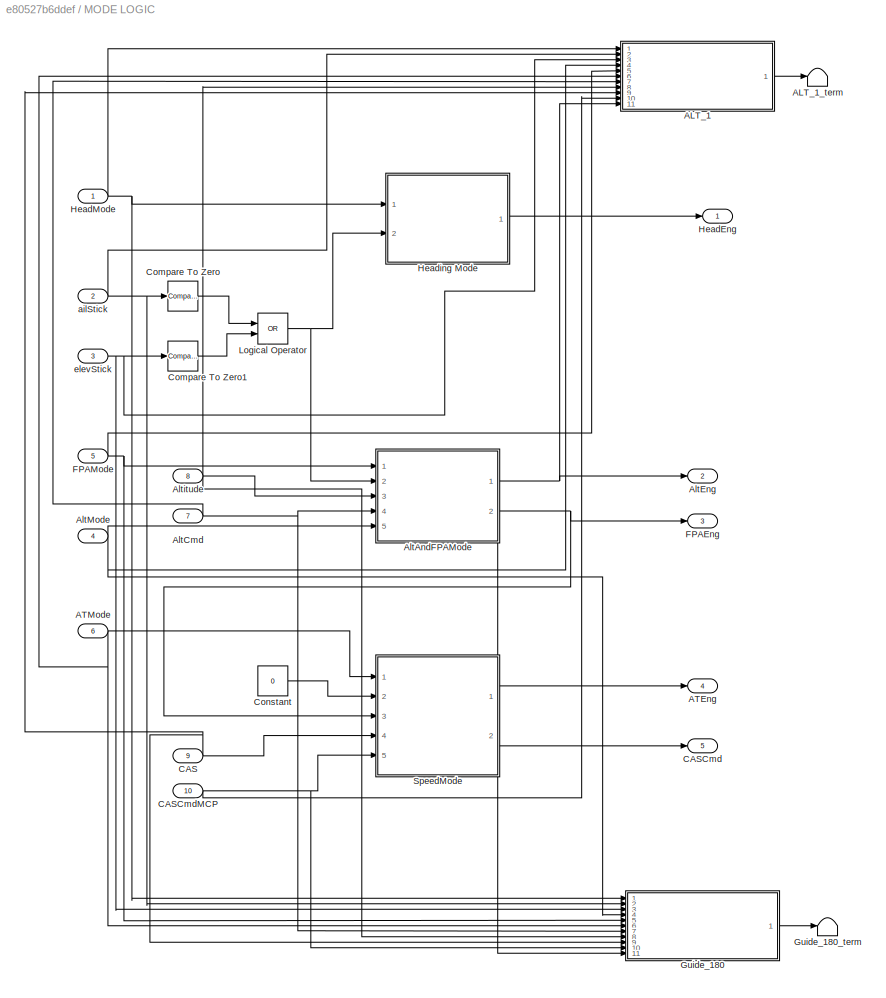
BLOCK [SubSystem] MODE LOGIC
  Ports = [10, 5]
  RequestExecContextInheritance = off
  TreatAsAtomicUnit = on
BLOCK [SubSystem] MODE LOGIC/ALT_1
  Ports = [11, 1]
  RequestExecContextInheritance = off
  TreatAsAtomicUnit = on
BLOCK [Outport] MODE LOGIC/ALT_1/ALT_1
  IconDisplay = Port number
BLOCK [Inport] MODE LOGIC/ALT_1/ATMode
  IconDisplay = Port number
  Port = 6
BLOCK [Terminator] MODE LOGIC/ALT_1/ATMode_term
BLOCK [Inport] MODE LOGIC/ALT_1/AltCmd
  IconDisplay = Port number
  Port = 7
BLOCK [Terminator] MODE LOGIC/ALT_1/AltCmd_term
BLOCK [Inport] MODE LOGIC/ALT_1/AltEng
  IconDisplay = Port number
  Port = 11
BLOCK [Inport] MODE LOGIC/ALT_1/AltMode
  IconDisplay = Port number
  Port = 4
BLOCK [Inport] MODE LOGIC/ALT_1/Altitude
  IconDisplay = Port number
  Port = 8
BLOCK [Terminator] MODE LOGIC/ALT_1/Altitude_term
BLOCK [Inport] MODE LOGIC/ALT_1/CAS
  IconDisplay = Port number
  Port = 9
BLOCK [Inport] MODE LOGIC/ALT_1/CASCmdMCP
  IconDisplay = Port number
  Port = 10
BLOCK [Terminator] MODE LOGIC/ALT_1/CASCmdMCP_term
BLOCK [Terminator] MODE LOGIC/ALT_1/CAS_term
BLOCK [Constant] MODE LOGIC/ALT_1/Constant
  Value = 0
BLOCK [Inport] MODE LOGIC/ALT_1/FPAMode
  IconDisplay = Port number
  Port = 5
BLOCK [Terminator] MODE LOGIC/ALT_1/FPAMode_term
BLOCK [Inport] MODE LOGIC/ALT_1/HeadMode
  IconDisplay = Port number
BLOCK [Terminator] MODE LOGIC/ALT_1/HeadMode_term
BLOCK [Logic] MODE LOGIC/ALT_1/Logical Operator
  AllPortsSameDT = off
  Operator = OR
  OutDataTypeStr = boolean
  Ports = [2, 1]
BLOCK [Logic] MODE LOGIC/ALT_1/Logical Operator1
  AllPortsSameDT = off
  Operator = NOT
  OutDataTypeStr = boolean
  Ports = [1, 1]
BLOCK [RelationalOperator] MODE LOGIC/ALT_1/Relational Operator
  InputSameDT = off
  Operator = ==
  OutDataTypeStr = boolean
  Ports = [2, 1]
BLOCK [Inport] MODE LOGIC/ALT_1/ailStick
  IconDisplay = Port number
  Port = 2
BLOCK [Terminator] MODE LOGIC/ALT_1/ailStick_term
BLOCK [Inport] MODE LOGIC/ALT_1/elevStick
  IconDisplay = Port number
  Port = 3
BLOCK [Terminator] MODE LOGIC/ALT_1/elevStick_term
BLOCK [Terminator] MODE LOGIC/ALT_1_term
BLOCK [Outport] MODE LOGIC/ATEng
  IconDisplay = Port number
  Port = 4
BLOCK [Inport] MODE LOGIC/ATMode
  IconDisplay = Port number
  Port = 6
BLOCK [SubSystem] MODE LOGIC/AltAndFPAMode
  Ports = [5, 2]
  RequestExecContextInheritance = off
  TreatAsAtomicUnit = on
BLOCK [Abs] MODE LOGIC/AltAndFPAMode/Abs
  SaturateOnIntegerOverflow = off
BLOCK [Inport] MODE LOGIC/AltAndFPAMode/ActiavteAlt
  IconDisplay = Port number
  Port = 5
BLOCK [Inport] MODE LOGIC/AltAndFPAMode/ActiavteFPA
  IconDisplay = Port number
BLOCK [Sum] MODE LOGIC/AltAndFPAMode/Add
  InputSameDT = off
  Inputs = +-
  OutDataTypeStr = Inherit: Inherit via internal rule
  Ports = [2, 1]
  SaturateOnIntegerOverflow = off
BLOCK [Inport] MODE LOGIC/AltAndFPAMode/AltCmd
  IconDisplay = Port number
  Port = 4
BLOCK [Outport] MODE LOGIC/AltAndFPAMode/AltEng
  IconDisplay = Port number
BLOCK [Inport] MODE LOGIC/AltAndFPAMode/Altitude
  IconDisplay = Port number
  Port = 3
BLOCK [Reference] MODE LOGIC/AltAndFPAMode/Compare To Constant  REF=simulink/Logic and Bit
Operations/Compare
To Constant
  OutDataTypeStr = boolean
  Ports = [1, 1]
  SourceBlock = simulink/Logic and Bit\nOperations/Compare\nTo Constant
  SourceType = Compare To Constant
  ZeroCross = on
  const = 0.0
  relop = ~=
BLOCK [Reference] MODE LOGIC/AltAndFPAMode/Compare To Constant1  REF=simulink/Logic and Bit
Operations/Compare
To Constant
  OutDataTypeStr = boolean
  Ports = [1, 1]
  SourceBlock = simulink/Logic and Bit\nOperations/Compare\nTo Constant
  SourceType = Compare To Constant
  ZeroCross = on
  const = 0.0
  relop = ~=
BLOCK [Reference] MODE LOGIC/AltAndFPAMode/Compare To Constant2  REF=simulink/Logic and Bit
Operations/Compare
To Constant
  OutDataTypeStr = boolean
  Ports = [1, 1]
  SourceBlock = simulink/Logic and Bit\nOperations/Compare\nTo Constant
  SourceType = Compare To Constant
  ZeroCross = on
  const = 200.0
  relop = <=
BLOCK [Reference] MODE LOGIC/AltAndFPAMode/Compare To Constant3  REF=simulink/Logic and Bit
Operations/Compare
To Constant
  OutDataTypeStr = boolean
  Ports = [1, 1]
  SourceBlock = simulink/Logic and Bit\nOperations/Compare\nTo Constant
  SourceType = Compare To Constant
  ZeroCross = on
  const = 0.0
  relop = ~=
BLOCK [Inport] MODE LOGIC/AltAndFPAMode/Deactivate
  IconDisplay = Port number
  Port = 2
BLOCK [Outport] MODE LOGIC/AltAndFPAMode/FPAEng
  IconDisplay = Port number
  Port = 2
BLOCK [Logic] MODE LOGIC/AltAndFPAMode/Logical Operator1
  AllPortsSameDT = off
  Operator = OR
  OutDataTypeStr = boolean
  Ports = [2, 1]
BLOCK [Logic] MODE LOGIC/AltAndFPAMode/Logical Operator2
  AllPortsSameDT = off
  Operator = NOT
  OutDataTypeStr = boolean
  Ports = [1, 1]
BLOCK [Logic] MODE LOGIC/AltAndFPAMode/Logical Operator3
  AllPortsSameDT = off
  OutDataTypeStr = boolean
  Ports = [2, 1]
BLOCK [Logic] MODE LOGIC/AltAndFPAMode/Logical Operator4
  AllPortsSameDT = off
  OutDataTypeStr = boolean
  Ports = [2, 1]
BLOCK [Logic] MODE LOGIC/AltAndFPAMode/Logical Operator6
  AllPortsSameDT = off
  Operator = NAND
  OutDataTypeStr = boolean
  Ports = [2, 1]
BLOCK [SubSystem] MODE LOGIC/AltAndFPAMode/S-R Flip-Flop Repl.
  Ports = [2, 2]
  RequestExecContextInheritance = off
BLOCK [Outport] MODE LOGIC/AltAndFPAMode/S-R Flip-Flop Repl./!Q
  IconDisplay = Port number
  Port = 2
BLOCK [Logic] MODE LOGIC/AltAndFPAMode/S-R Flip-Flop Repl./Logical Operator
  AllPortsSameDT = off
  Operator = NAND
  OutDataTypeStr = boolean
  Ports = [2, 1]
BLOCK [Logic] MODE LOGIC/AltAndFPAMode/S-R Flip-Flop Repl./Logical Operator1
  AllPortsSameDT = off
  Operator = NAND
  OutDataTypeStr = boolean
  Ports = [2, 1]
BLOCK [Logic] MODE LOGIC/AltAndFPAMode/S-R Flip-Flop Repl./Logical Operator2
  AllPortsSameDT = off
  Operator = NOT
  OutDataTypeStr = boolean
  Ports = [1, 1]
BLOCK [Logic] MODE LOGIC/AltAndFPAMode/S-R Flip-Flop Repl./Logical Operator3
  AllPortsSameDT = off
  Operator = NOT
  OutDataTypeStr = boolean
  Ports = [1, 1]
BLOCK [Outport] MODE LOGIC/AltAndFPAMode/S-R Flip-Flop Repl./Q
  IconDisplay = Port number
BLOCK [Inport] MODE LOGIC/AltAndFPAMode/S-R Flip-Flop Repl./R
  IconDisplay = Port number
  Port = 2
BLOCK [Inport] MODE LOGIC/AltAndFPAMode/S-R Flip-Flop Repl./S
  IconDisplay = Port number
BLOCK [UnitDelay] MODE LOGIC/AltAndFPAMode/S-R Flip-Flop Repl./Unit Delay
  InputProcessing = Elements as channels (sample based)
  SampleTime = -1
BLOCK [UnitDelay] MODE LOGIC/AltAndFPAMode/S-R Flip-Flop Repl./Unit Delay1
  InitialCondition = 1
  InputProcessing = Elements as channels (sample based)
  SampleTime = -1
BLOCK [SubSystem] MODE LOGIC/AltAndFPAMode/S-R Flip-Flop Repl.1
  Ports = [2, 2]
  RequestExecContextInheritance = off
BLOCK [Outport] MODE LOGIC/AltAndFPAMode/S-R Flip-Flop Repl.1/!Q
  IconDisplay = Port number
  Port = 2
BLOCK [Logic] MODE LOGIC/AltAndFPAMode/S-R Flip-Flop Repl.1/Logical Operator
  AllPortsSameDT = off
  Operator = NAND
  OutDataTypeStr = boolean
  Ports = [2, 1]
BLOCK [Logic] MODE LOGIC/AltAndFPAMode/S-R Flip-Flop Repl.1/Logical Operator1
  AllPortsSameDT = off
  Operator = NAND
  OutDataTypeStr = boolean
  Ports = [2, 1]
BLOCK [Logic] MODE LOGIC/AltAndFPAMode/S-R Flip-Flop Repl.1/Logical Operator2
  AllPortsSameDT = off
  Operator = NOT
  OutDataTypeStr = boolean
  Ports = [1, 1]
BLOCK [Logic] MODE LOGIC/AltAndFPAMode/S-R Flip-Flop Repl.1/Logical Operator3
  AllPortsSameDT = off
  Operator = NOT
  OutDataTypeStr = boolean
  Ports = [1, 1]
BLOCK [Outport] MODE LOGIC/AltAndFPAMode/S-R Flip-Flop Repl.1/Q
  IconDisplay = Port number
BLOCK [Inport] MODE LOGIC/AltAndFPAMode/S-R Flip-Flop Repl.1/R
  IconDisplay = Port number
  Port = 2
BLOCK [Inport] MODE LOGIC/AltAndFPAMode/S-R Flip-Flop Repl.1/S
  IconDisplay = Port number
BLOCK [UnitDelay] MODE LOGIC/AltAndFPAMode/S-R Flip-Flop Repl.1/Unit Delay
  InputProcessing = Elements as channels (sample based)
  SampleTime = -1
BLOCK [UnitDelay] MODE LOGIC/AltAndFPAMode/S-R Flip-Flop Repl.1/Unit Delay1
  InitialCondition = 1
  InputProcessing = Elements as channels (sample based)
  SampleTime = -1
BLOCK [Terminator] MODE LOGIC/AltAndFPAMode/Terminator
BLOCK [Terminator] MODE LOGIC/AltAndFPAMode/Terminator1
BLOCK [Inport] MODE LOGIC/AltCmd
  IconDisplay = Port number
  Port = 7
BLOCK [Outport] MODE LOGIC/AltEng
  IconDisplay = Port number
  Port = 2
BLOCK [Inport] MODE LOGIC/AltMode
  IconDisplay = Port number
  Port = 4
BLOCK [Inport] MODE LOGIC/Altitude
  IconDisplay = Port number
  Port = 8
BLOCK [Inport] MODE LOGIC/CAS
  IconDisplay = Port number
  Port = 9
BLOCK [Outport] MODE LOGIC/CASCmd
  IconDisplay = Port number
  Port = 5
BLOCK [Inport] MODE LOGIC/CASCmdMCP
  IconDisplay = Port number
  Port = 10
BLOCK [Reference] MODE LOGIC/Compare To Zero  REF=simulink/Logic and Bit
Operations/Compare
To Zero
  OutDataTypeStr = boolean
  Ports = [1, 1]
  SourceBlock = simulink/Logic and Bit\nOperations/Compare\nTo Zero
  SourceType = Compare To Zero
  ZeroCross = on
  relop = ~=
BLOCK [Reference] MODE LOGIC/Compare To Zero1  REF=simulink/Logic and Bit
Operations/Compare
To Zero
  OutDataTypeStr = boolean
  Ports = [1, 1]
  SourceBlock = simulink/Logic and Bit\nOperations/Compare\nTo Zero
  SourceType = Compare To Zero
  ZeroCross = on
  relop = ~=
BLOCK [Constant] MODE LOGIC/Constant
  Value = 0
BLOCK [Outport] MODE LOGIC/FPAEng
  IconDisplay = Port number
  Port = 3
BLOCK [Inport] MODE LOGIC/FPAMode
  IconDisplay = Port number
  Port = 5
BLOCK [SubSystem] MODE LOGIC/Guide_180
  Ports = [11, 1]
  RequestExecContextInheritance = off
  TreatAsAtomicUnit = on
BLOCK [Inport] MODE LOGIC/Guide_180/ATMode
  IconDisplay = Port number
  Port = 6
BLOCK [Terminator] MODE LOGIC/Guide_180/ATMode_term
BLOCK [Inport] MODE LOGIC/Guide_180/AltCmd
  IconDisplay = Port number
  Port = 7
BLOCK [Terminator] MODE LOGIC/Guide_180/AltCmd_term
BLOCK [Inport] MODE LOGIC/Guide_180/AltMode
  IconDisplay = Port number
  Port = 4
BLOCK [Terminator] MODE LOGIC/Guide_180/AltMode_term
BLOCK [Inport] MODE LOGIC/Guide_180/Altitude
  IconDisplay = Port number
  Port = 8
BLOCK [Terminator] MODE LOGIC/Guide_180/Altitude_term
BLOCK [Inport] MODE LOGIC/Guide_180/CAS
  IconDisplay = Port number
  Port = 9
BLOCK [Inport] MODE LOGIC/Guide_180/CASCmdMCP
  IconDisplay = Port number
  Port = 10
BLOCK [Terminator] MODE LOGIC/Guide_180/CASCmdMCP_term
BLOCK [Terminator] MODE LOGIC/Guide_180/CAS_term
BLOCK [Inport] MODE LOGIC/Guide_180/FPAEng
  IconDisplay = Port number
  Port = 11
BLOCK [Inport] MODE LOGIC/Guide_180/FPAMode
  IconDisplay = Port number
  Port = 5
BLOCK [Terminator] MODE LOGIC/Guide_180/FPAMode_term
BLOCK [Outport] MODE LOGIC/Guide_180/Guide_180
  IconDisplay = Port number
BLOCK [Inport] MODE LOGIC/Guide_180/HeadMode
  IconDisplay = Port number
BLOCK [Terminator] MODE LOGIC/Guide_180/HeadMode_term
BLOCK [Inport] MODE LOGIC/Guide_180/ailStick
  IconDisplay = Port number
  Port = 2
BLOCK [Terminator] MODE LOGIC/Guide_180/ailStick_term
BLOCK [Inport] MODE LOGIC/Guide_180/elevStick
  IconDisplay = Port number
  Port = 3
BLOCK [Terminator] MODE LOGIC/Guide_180/elevStick_term
BLOCK [Terminator] MODE LOGIC/Guide_180_term
BLOCK [Outport] MODE LOGIC/HeadEng
  IconDisplay = Port number
BLOCK [Inport] MODE LOGIC/HeadMode
  IconDisplay = Port number
BLOCK [SubSystem] MODE LOGIC/Heading Mode
  Ports = [2, 1]
  RequestExecContextInheritance = off
  TreatAsAtomicUnit = on
BLOCK [Inport] MODE LOGIC/Heading Mode/Actiavte
  IconDisplay = Port number
BLOCK [Reference] MODE LOGIC/Heading Mode/Compare To Constant  REF=simulink/Logic and Bit
Operations/Compare
To Constant
  OutDataTypeStr = boolean
  Ports = [1, 1]
  SourceBlock = simulink/Logic and Bit\nOperations/Compare\nTo Constant
  SourceType = Compare To Constant
  ZeroCross = on
  const = 0.0
  relop = ~=
BLOCK [Reference] MODE LOGIC/Heading Mode/Compare To Constant1  REF=simulink/Logic and Bit
Operations/Compare
To Constant
  OutDataTypeStr = boolean
  Ports = [1, 1]
  SourceBlock = simulink/Logic and Bit\nOperations/Compare\nTo Constant
  SourceType = Compare To Constant
  ZeroCross = on
  const = 0.0
  relop = ~=
BLOCK [Inport] MODE LOGIC/Heading Mode/Deactivate
  IconDisplay = Port number
  Port = 2
BLOCK [Outport] MODE LOGIC/Heading Mode/HeadEng
  IconDisplay = Port number
BLOCK [SubSystem] MODE LOGIC/Heading Mode/S-R Flip-Flop Repl.
  Ports = [2, 2]
  RequestExecContextInheritance = off
BLOCK [Outport] MODE LOGIC/Heading Mode/S-R Flip-Flop Repl./!Q
  IconDisplay = Port number
  Port = 2
BLOCK [Logic] MODE LOGIC/Heading Mode/S-R Flip-Flop Repl./Logical Operator
  AllPortsSameDT = off
  Operator = NAND
  OutDataTypeStr = boolean
  Ports = [2, 1]
BLOCK [Logic] MODE LOGIC/Heading Mode/S-R Flip-Flop Repl./Logical Operator1
  AllPortsSameDT = off
  Operator = NAND
  OutDataTypeStr = boolean
  Ports = [2, 1]
BLOCK [Logic] MODE LOGIC/Heading Mode/S-R Flip-Flop Repl./Logical Operator2
  AllPortsSameDT = off
  Operator = NOT
  OutDataTypeStr = boolean
  Ports = [1, 1]
BLOCK [Logic] MODE LOGIC/Heading Mode/S-R Flip-Flop Repl./Logical Operator3
  AllPortsSameDT = off
  Operator = NOT
  OutDataTypeStr = boolean
  Ports = [1, 1]
BLOCK [Outport] MODE LOGIC/Heading Mode/S-R Flip-Flop Repl./Q
  IconDisplay = Port number
BLOCK [Inport] MODE LOGIC/Heading Mode/S-R Flip-Flop Repl./R
  IconDisplay = Port number
  Port = 2
BLOCK [Inport] MODE LOGIC/Heading Mode/S-R Flip-Flop Repl./S
  IconDisplay = Port number
BLOCK [UnitDelay] MODE LOGIC/Heading Mode/S-R Flip-Flop Repl./Unit Delay
  InputProcessing = Elements as channels (sample based)
  SampleTime = -1
BLOCK [UnitDelay] MODE LOGIC/Heading Mode/S-R Flip-Flop Repl./Unit Delay1
  InitialCondition = 1
  InputProcessing = Elements as channels (sample based)
  SampleTime = -1
BLOCK [Terminator] MODE LOGIC/Heading Mode/Terminator
BLOCK [Logic] MODE LOGIC/Logical Operator
  AllPortsSameDT = off
  Operator = OR
  OutDataTypeStr = boolean
  Ports = [2, 1]
BLOCK [SubSystem] MODE LOGIC/SpeedMode
  Ports = [5, 2]
  RequestExecContextInheritance = off
  TreatAsAtomicUnit = on
BLOCK [Outport] MODE LOGIC/SpeedMode/ATEng
  IconDisplay = Port number
BLOCK [Inport] MODE LOGIC/SpeedMode/Actiavte
  IconDisplay = Port number
BLOCK [Sum] MODE LOGIC/SpeedMode/Add
  InputSameDT = off
  OutDataTypeStr = Inherit: Inherit via internal rule
  Ports = [2, 1]
  SaturateOnIntegerOverflow = off
BLOCK [Inport] MODE LOGIC/SpeedMode/AltEng
  IconDisplay = Port number
  Port = 3
BLOCK [Inport] MODE LOGIC/SpeedMode/CAS
  IconDisplay = Port number
  Port = 4
BLOCK [Outport] MODE LOGIC/SpeedMode/CASCmd
  IconDisplay = Port number
  Port = 2
BLOCK [Inport] MODE LOGIC/SpeedMode/CASCmdMCP
  IconDisplay = Port number
  Port = 5
BLOCK [Reference] MODE LOGIC/SpeedMode/Compare To Constant  REF=simulink/Logic and Bit
Operations/Compare
To Constant
  OutDataTypeStr = boolean
  Ports = [1, 1]
  SourceBlock = simulink/Logic and Bit\nOperations/Compare\nTo Constant
  SourceType = Compare To Constant
  ZeroCross = on
  const = 0.0
  relop = ~=
BLOCK [Reference] MODE LOGIC/SpeedMode/Compare To Constant1  REF=simulink/Logic and Bit
Operations/Compare
To Constant
  OutDataTypeStr = boolean
  Ports = [1, 1]
  SourceBlock = simulink/Logic and Bit\nOperations/Compare\nTo Constant
  SourceType = Compare To Constant
  ZeroCross = on
  const = 0.0
  relop = ~=
BLOCK [Inport] MODE LOGIC/SpeedMode/Deactivate
  IconDisplay = Port number
  Port = 2
BLOCK [Logic] MODE LOGIC/SpeedMode/Logical Operator
  AllPortsSameDT = off
  OutDataTypeStr = boolean
  Ports = [2, 1]
BLOCK [Logic] MODE LOGIC/SpeedMode/Logical Operator2
  AllPortsSameDT = off
  Operator = OR
  OutDataTypeStr = boolean
  Ports = [2, 1]
BLOCK [SubSystem] MODE LOGIC/SpeedMode/S-R Flip-Flop Repl.
  Ports = [2, 2]
  RequestExecContextInheritance = off
BLOCK [Outport] MODE LOGIC/SpeedMode/S-R Flip-Flop Repl./!Q
  IconDisplay = Port number
  Port = 2
BLOCK [Logic] MODE LOGIC/SpeedMode/S-R Flip-Flop Repl./Logical Operator
  AllPortsSameDT = off
  Operator = NAND
  OutDataTypeStr = boolean
  Ports = [2, 1]
BLOCK [Logic] MODE LOGIC/SpeedMode/S-R Flip-Flop Repl./Logical Operator1
  AllPortsSameDT = off
  Operator = NAND
  OutDataTypeStr = boolean
  Ports = [2, 1]
BLOCK [Logic] MODE LOGIC/SpeedMode/S-R Flip-Flop Repl./Logical Operator2
  AllPortsSameDT = off
  Operator = NOT
  OutDataTypeStr = boolean
  Ports = [1, 1]
BLOCK [Logic] MODE LOGIC/SpeedMode/S-R Flip-Flop Repl./Logical Operator3
  AllPortsSameDT = off
  Operator = NOT
  OutDataTypeStr = boolean
  Ports = [1, 1]
BLOCK [Outport] MODE LOGIC/SpeedMode/S-R Flip-Flop Repl./Q
  IconDisplay = Port number
BLOCK [Inport] MODE LOGIC/SpeedMode/S-R Flip-Flop Repl./R
  IconDisplay = Port number
  Port = 2
BLOCK [Inport] MODE LOGIC/SpeedMode/S-R Flip-Flop Repl./S
  IconDisplay = Port number
BLOCK [UnitDelay] MODE LOGIC/SpeedMode/S-R Flip-Flop Repl./Unit Delay
  InputProcessing = Elements as channels (sample based)
  SampleTime = -1
BLOCK [UnitDelay] MODE LOGIC/SpeedMode/S-R Flip-Flop Repl./Unit Delay1
  InitialCondition = 1
  InputProcessing = Elements as channels (sample based)
  SampleTime = -1
BLOCK [Switch] MODE LOGIC/SpeedMode/Switch
  InputSameDT = off
  SaturateOnIntegerOverflow = off
BLOCK [Switch] MODE LOGIC/SpeedMode/Switch1
  Criteria = u2 > Threshold
  InputSameDT = off
  SaturateOnIntegerOverflow = off
  Threshold = 1
BLOCK [UnitDelay] MODE LOGIC/SpeedMode/Unit Delay2
  InputProcessing = Elements as channels (sample based)
  SampleTime = -1
BLOCK [Inport] MODE LOGIC/ailStick
  IconDisplay = Port number
  Port = 2
BLOCK [Inport] MODE LOGIC/elevStick
  IconDisplay = Port number
  Port = 3
BLOCK [Inport] ailStick
  IconDisplay = Port number
  Port = 2
BLOCK [Inport] gamINS_degf
  IconDisplay = Port number
  OutDataTypeStr = double
  Port = 16
  SignalType = real
BLOCK [Inport] hdot_fpsf 
  IconDisplay = Port number
  OutDataTypeStr = double
  Port = 14
  SignalType = real
BLOCK [Inport] qbdegf
  IconDisplay = Port number
  OutDataTypeStr = double
  Port = 12
  SignalType = real
BLOCK [Inport] tas_ktsf
  IconDisplay = Port number
  OutDataTypeStr = double
  Port = 15
  SignalType = real
BLOCK [Inport] thetadegf
  IconDisplay = Port number
  OutDataTypeStr = double
  Port = 11
  SignalType = real
ANNOTATION CONTROLS/Altitude Control: hdotchangerate
ANNOTATION CONTROLS/Altitude Control: maxHdotChg
ANNOTATION MODE LOGIC/Guide_180: assert AltMode == 0.0; assert not ( FPAMode == 0.0); assert ailStick == 0.0; assert elevStick == 0.0;
ANNOTATION MODE LOGIC/SpeedMode: Not sure if this unit delay is needed??
LINE ATMode:1 -> MODE LOGIC:6
NET AltCmd:1 -> CONTROLS:4, MODE LOGIC:7
LINE AltMode:1 -> MODE LOGIC:4
NET Altitude:1 -> CONTROLS:5, MODE LOGIC:8
NET CAS:1 -> CONTROLS:12, MODE LOGIC:9
LINE CASCmdMCP:1 -> MODE LOGIC:10
LINE CONTROLS/Alt:1 -> CONTROLS/Altitude Control:3
LINE CONTROLS/AltCmd:1 -> CONTROLS/Altitude Control:2
NET CONTROLS/AltEng:1 -> CONTROLS/Altitude Control:1, CONTROLS/Logical Operator:1
LINE CONTROLS/Altitude Control/ALT_2/AltCmd:1 -> CONTROLS/Altitude Control/ALT_2/AltCmd_term:1
LINE CONTROLS/Altitude Control/ALT_2/Altitude:1 -> CONTROLS/Altitude Control/ALT_2/Altitude_term:1
LINE CONTROLS/Altitude Control/ALT_2/Constant:1 -> CONTROLS/Altitude Control/ALT_2/Relational Operator:2
LINE CONTROLS/Altitude Control/ALT_2/Logical Operator:1 -> CONTROLS/Altitude Control/ALT_2/ALT_2:1
LINE CONTROLS/Altitude Control/ALT_2/Relational Operator:1 -> CONTROLS/Altitude Control/ALT_2/Logical Operator:2
LINE CONTROLS/Altitude Control/ALT_2/altgamcmd:1 -> CONTROLS/Altitude Control/ALT_2/Relational Operator:1
LINE CONTROLS/Altitude Control/ALT_2/engage:1 -> CONTROLS/Altitude Control/ALT_2/Logical Operator:1
LINE CONTROLS/Altitude Control/ALT_2/gskts:1 -> CONTROLS/Altitude Control/ALT_2/gskts_term:1
LINE CONTROLS/Altitude Control/ALT_2/hdot:1 -> CONTROLS/Altitude Control/ALT_2/hdot_term:1
LINE CONTROLS/Altitude Control/ALT_2:1 -> CONTROLS/Altitude Control/ALT_2_term:1
LINE CONTROLS/Altitude Control/Abs:1 -> CONTROLS/Altitude Control/Sum3:1
NET CONTROLS/Altitude Control/AltCmd:1 -> CONTROLS/Altitude Control/ALT_2:2, CONTROLS/Altitude Control/Mux:1, CONTROLS/Altitude Control/Sum:1
NET CONTROLS/Altitude Control/Altitude:1 -> CONTROLS/Altitude Control/ALT_2:3, CONTROLS/Altitude Control/Mux:2, CONTROLS/Altitude Control/Sum:2
LINE CONTROLS/Altitude Control/Constant1:1 -> CONTROLS/Altitude Control/Switch:3
LINE CONTROLS/Altitude Control/Constant3:1 -> CONTROLS/Altitude Control/Sum3:2
LINE CONTROLS/Altitude Control/Constant4:1 -> CONTROLS/Altitude Control/Variable Rate Limit:1
LINE CONTROLS/Altitude Control/Divide:1 -> CONTROLS/Altitude Control/r2d:1
LINE CONTROLS/Altitude Control/Kh:1 -> CONTROLS/Altitude Control/Switch:1
LINE CONTROLS/Altitude Control/Logical Operator:1 -> CONTROLS/Altitude Control/Variable Rate Limit:3
LINE CONTROLS/Altitude Control/Mux1:1 -> CONTROLS/Altitude Control/AltCtnlScope:2
LINE CONTROLS/Altitude Control/Mux:1 -> CONTROLS/Altitude Control/AltCtnlScope:1
LINE CONTROLS/Altitude Control/Saturation1/Constant1:1 -> CONTROLS/Altitude Control/Saturation1/Enforce low lim:1
LINE CONTROLS/Altitude Control/Saturation1/Constant2:1 -> CONTROLS/Altitude Control/Saturation1/Enforce up lim:2
LINE CONTROLS/Altitude Control/Saturation1/Enforce low lim:1 -> CONTROLS/Altitude Control/Saturation1/Enforce up lim:1
LINE CONTROLS/Altitude Control/Saturation1/Enforce up lim:1 -> CONTROLS/Altitude Control/Saturation1/Out1:1
LINE CONTROLS/Altitude Control/Saturation1/SigIn:1 -> CONTROLS/Altitude Control/Saturation1/Enforce low lim:2
LINE CONTROLS/Altitude Control/Saturation1:1 -> CONTROLS/Altitude Control/Divide:2
NET CONTROLS/Altitude Control/Sum3:1 -> CONTROLS/Altitude Control/Variable Limit Saturation:1, CONTROLS/Altitude Control/k:1
LINE CONTROLS/Altitude Control/Sum:1 -> CONTROLS/Altitude Control/Kh:1
LINE CONTROLS/Altitude Control/Switch:1 -> CONTROLS/Altitude Control/Variable Limit Saturation:2
LINE CONTROLS/Altitude Control/Variable Limit Saturation/Enforce low lim:1 -> CONTROLS/Altitude Control/Variable Limit Saturation/Enforce up lim:1
LINE CONTROLS/Altitude Control/Variable Limit Saturation/Enforce up lim:1 -> CONTROLS/Altitude Control/Variable Limit Saturation/Out1:1
LINE CONTROLS/Altitude Control/Variable Limit Saturation/Lo_lim:1 -> CONTROLS/Altitude Control/Variable Limit Saturation/Enforce low lim:1
LINE CONTROLS/Altitude Control/Variable Limit Saturation/SigIn:1 -> CONTROLS/Altitude Control/Variable Limit Saturation/Enforce low lim:2
LINE CONTROLS/Altitude Control/Variable Limit Saturation/up_lim:1 -> CONTROLS/Altitude Control/Variable Limit Saturation/Enforce up lim:2
NET CONTROLS/Altitude Control/Variable Limit Saturation:1 -> CONTROLS/Altitude Control/Mux1:1, CONTROLS/Altitude Control/Variable Rate Limit:2
LINE CONTROLS/Altitude Control/Variable Rate Limit/Gain1:1 -> CONTROLS/Altitude Control/Variable Rate Limit/Variable Limit Saturation:3
LINE CONTROLS/Altitude Control/Variable Rate Limit/Gain:1 -> CONTROLS/Altitude Control/Variable Rate Limit/Variable Limit Saturation:2
LINE CONTROLS/Altitude Control/Variable Rate Limit/IC:1 -> CONTROLS/Altitude Control/Variable Rate Limit/integrator_reset:3
LINE CONTROLS/Altitude Control/Variable Rate Limit/ICtrig:1 -> CONTROLS/Altitude Control/Variable Rate Limit/integrator_reset:2
LINE CONTROLS/Altitude Control/Variable Rate Limit/Sum2:1 -> CONTROLS/Altitude Control/Variable Rate Limit/Gain:1
LINE CONTROLS/Altitude Control/Variable Rate Limit/Variable Limit Saturation/Enforce low lim:1 -> CONTROLS/Altitude Control/Variable Rate Limit/Variable Limit Saturation/Enforce up lim:1
LINE CONTROLS/Altitude Control/Variable Rate Limit/Variable Limit Saturation/Enforce up lim:1 -> CONTROLS/Altitude Control/Variable Rate Limit/Variable Limit Saturation/Out1:1
LINE CONTROLS/Altitude Control/Variable Rate Limit/Variable Limit Saturation/Lo_lim:1 -> CONTROLS/Altitude Control/Variable Rate Limit/Variable Limit Saturation/Enforce low lim:1
LINE CONTROLS/Altitude Control/Variable Rate Limit/Variable Limit Saturation/SigIn:1 -> CONTROLS/Altitude Control/Variable Rate Limit/Variable Limit Saturation/Enforce low lim:2
LINE CONTROLS/Altitude Control/Variable Rate Limit/Variable Limit Saturation/up_lim:1 -> CONTROLS/Altitude Control/Variable Rate Limit/Variable Limit Saturation/Enforce up lim:2
LINE CONTROLS/Altitude Control/Variable Rate Limit/Variable Limit Saturation:1 -> CONTROLS/Altitude Control/Variable Rate Limit/integrator_reset:1
LINE CONTROLS/Altitude Control/Variable Rate Limit/input:1 -> CONTROLS/Altitude Control/Variable Rate Limit/Sum2:1
LINE CONTROLS/Altitude Control/Variable Rate Limit/integrator_reset/Add:1 -> CONTROLS/Altitude Control/Variable Rate Limit/integrator_reset/Sum4:2
LINE CONTROLS/Altitude Control/Variable Rate Limit/integrator_reset/Constant:1 -> CONTROLS/Altitude Control/Variable Rate Limit/integrator_reset/delay#1:1
LINE CONTROLS/Altitude Control/Variable Rate Limit/integrator_reset/Gain1Reset:1 -> CONTROLS/Altitude Control/Variable Rate Limit/integrator_reset/Sum1:1
LINE CONTROLS/Altitude Control/Variable Rate Limit/integrator_reset/Product1:1 -> CONTROLS/Altitude Control/Variable Rate Limit/integrator_reset/Add:1
LINE CONTROLS/Altitude Control/Variable Rate Limit/integrator_reset/Product2:1 -> CONTROLS/Altitude Control/Variable Rate Limit/integrator_reset/Add:2
LINE CONTROLS/Altitude Control/Variable Rate Limit/integrator_reset/Product:1 -> CONTROLS/Altitude Control/Variable Rate Limit/integrator_reset/Sum2Reset:2
LINE CONTROLS/Altitude Control/Variable Rate Limit/integrator_reset/Sum1:1 -> CONTROLS/Altitude Control/Variable Rate Limit/integrator_reset/delay#2:1
LINE CONTROLS/Altitude Control/Variable Rate Limit/integrator_reset/Sum2Reset:1 -> CONTROLS/Altitude Control/Variable Rate Limit/integrator_reset/Sum1:2
NET CONTROLS/Altitude Control/Variable Rate Limit/integrator_reset/Sum3:1 -> CONTROLS/Altitude Control/Variable Rate Limit/integrator_reset/Product1:1, CONTROLS/Altitude Control/Variable Rate Limit/integrator_reset/Product2:2
LINE CONTROLS/Altitude Control/Variable Rate Limit/integrator_reset/Sum4:1 -> CONTROLS/Altitude Control/Variable Rate Limit/integrator_reset/Sum2Reset:1
LINE CONTROLS/Altitude Control/Variable Rate Limit/integrator_reset/delay#1:1 -> CONTROLS/Altitude Control/Variable Rate Limit/integrator_reset/Product:2
NET CONTROLS/Altitude Control/Variable Rate Limit/integrator_reset/delay#2:1 -> CONTROLS/Altitude Control/Variable Rate Limit/integrator_reset/F(x):1, CONTROLS/Altitude Control/Variable Rate Limit/integrator_reset/Sum3:1, CONTROLS/Altitude Control/Variable Rate Limit/integrator_reset/Sum4:1
LINE CONTROLS/Altitude Control/Variable Rate Limit/integrator_reset/delay#3:1 -> CONTROLS/Altitude Control/Variable Rate Limit/integrator_reset/ne1:1
LINE CONTROLS/Altitude Control/Variable Rate Limit/integrator_reset/eq0:1 -> CONTROLS/Altitude Control/Variable Rate Limit/integrator_reset/Product2:1
LINE CONTROLS/Altitude Control/Variable Rate Limit/integrator_reset/f(x):1 -> CONTROLS/Altitude Control/Variable Rate Limit/integrator_reset/Gain1Reset:1
LINE CONTROLS/Altitude Control/Variable Rate Limit/integrator_reset/ne0:1 -> CONTROLS/Altitude Control/Variable Rate Limit/integrator_reset/Product1:2
LINE CONTROLS/Altitude Control/Variable Rate Limit/integrator_reset/ne1:1 -> CONTROLS/Altitude Control/Variable Rate Limit/integrator_reset/Product2:3
NET CONTROLS/Altitude Control/Variable Rate Limit/integrator_reset/reset_level:1 -> CONTROLS/Altitude Control/Variable Rate Limit/integrator_reset/delay#3:1, CONTROLS/Altitude Control/Variable Rate Limit/integrator_reset/eq0:1, CONTROLS/Altitude Control/Variable Rate Limit/integrator_reset/ne0:1
NET CONTROLS/Altitude Control/Variable Rate Limit/integrator_reset/x0:1 -> CONTROLS/Altitude Control/Variable Rate Limit/integrator_reset/Product:1, CONTROLS/Altitude Control/Variable Rate Limit/integrator_reset/Sum3:2
NET CONTROLS/Altitude Control/Variable Rate Limit/integrator_reset/zero:1 -> CONTROLS/Altitude Control/Variable Rate Limit/integrator_reset/eq0:2, CONTROLS/Altitude Control/Variable Rate Limit/integrator_reset/ne0:2, CONTROLS/Altitude Control/Variable Rate Limit/integrator_reset/ne1:2
NET CONTROLS/Altitude Control/Variable Rate Limit/integrator_reset:1 -> CONTROLS/Altitude Control/Variable Rate Limit/Sum2:2, CONTROLS/Altitude Control/Variable Rate Limit/output:1
NET CONTROLS/Altitude Control/Variable Rate Limit/ratelim:1 -> CONTROLS/Altitude Control/Variable Rate Limit/Gain1:1, CONTROLS/Altitude Control/Variable Rate Limit/Variable Limit Saturation:1
NET CONTROLS/Altitude Control/Variable Rate Limit:1 -> CONTROLS/Altitude Control/Divide:1, CONTROLS/Altitude Control/Mux1:2
NET CONTROLS/Altitude Control/engage:1 -> CONTROLS/Altitude Control/ALT_2:1, CONTROLS/Altitude Control/AltCtnlScope:3, CONTROLS/Altitude Control/Logical Operator:1, CONTROLS/Altitude Control/Switch:2
NET CONTROLS/Altitude Control/gskts:1 -> CONTROLS/Altitude Control/ALT_2:4, CONTROLS/Altitude Control/kts2fps:1
NET CONTROLS/Altitude Control/hdot:1 -> CONTROLS/Altitude Control/ALT_2:5, CONTROLS/Altitude Control/Abs:1, CONTROLS/Altitude Control/Variable Rate Limit:4
LINE CONTROLS/Altitude Control/k:1 -> CONTROLS/Altitude Control/Variable Limit Saturation:3
LINE CONTROLS/Altitude Control/kts2fps:1 -> CONTROLS/Altitude Control/Saturation1:1
NET CONTROLS/Altitude Control/r2d:1 -> CONTROLS/Altitude Control/ALT_2:6, CONTROLS/Altitude Control/altgamcmd:1
LINE CONTROLS/Altitude Control:1 -> CONTROLS/k2:1
LINE CONTROLS/CAS:1 -> CONTROLS/Pitch InnerLoop:4
LINE CONTROLS/ElevStick:1 -> CONTROLS/ManualOverride:1
LINE CONTROLS/EngageORzero/Engage:1 -> CONTROLS/EngageORzero/Logical Operator5:1
LINE CONTROLS/EngageORzero/In:1 -> CONTROLS/EngageORzero/Switch1:1
LINE CONTROLS/EngageORzero/Logical Operator5:1 -> CONTROLS/EngageORzero/Switch1:2
LINE CONTROLS/EngageORzero/Switch1:1 -> CONTROLS/EngageORzero/Out:1
LINE CONTROLS/EngageORzero/zero10:1 -> CONTROLS/EngageORzero/Logical Operator5:2
LINE CONTROLS/EngageORzero/zero9:1 -> CONTROLS/EngageORzero/Switch1:3
LINE CONTROLS/EngageORzero:1 -> CONTROLS/ManualOverride:2
LINE CONTROLS/FPA Control/DynamicSaturation/LowerRelop1:1 -> CONTROLS/FPA Control/DynamicSaturation/Switch2:2
LINE CONTROLS/FPA Control/DynamicSaturation/Switch2:1 -> CONTROLS/FPA Control/DynamicSaturation/y1:1
LINE CONTROLS/FPA Control/DynamicSaturation/Switch:1 -> CONTROLS/FPA Control/DynamicSaturation/Switch2:3
LINE CONTROLS/FPA Control/DynamicSaturation/UpperRelop:1 -> CONTROLS/FPA Control/DynamicSaturation/Switch:2
NET CONTROLS/FPA Control/DynamicSaturation/lo:1 -> CONTROLS/FPA Control/DynamicSaturation/Switch:1, CONTROLS/FPA Control/DynamicSaturation/UpperRelop:2
NET CONTROLS/FPA Control/DynamicSaturation/u:1 -> CONTROLS/FPA Control/DynamicSaturation/LowerRelop1:1, CONTROLS/FPA Control/DynamicSaturation/Switch:3, CONTROLS/FPA Control/DynamicSaturation/UpperRelop:1
NET CONTROLS/FPA Control/DynamicSaturation/up:1 -> CONTROLS/FPA Control/DynamicSaturation/LowerRelop1:2, CONTROLS/FPA Control/DynamicSaturation/Switch2:1
NET CONTROLS/FPA Control/DynamicSaturation:1 -> CONTROLS/FPA Control/Mux1:2, CONTROLS/FPA Control/integrator_reset:1
LINE CONTROLS/FPA Control/FPA_1/Logical Operator1:1 -> CONTROLS/FPA Control/FPA_1/Logical Operator2:3
LINE CONTROLS/FPA Control/FPA_1/Logical Operator2:1 -> CONTROLS/FPA Control/FPA_1/Unit Delay:1
LINE CONTROLS/FPA Control/FPA_1/Logical Operator:1 -> CONTROLS/FPA Control/FPA_1/Logical Operator2:2
NET CONTROLS/FPA Control/FPA_1/PitchCmd:1 -> CONTROLS/FPA Control/FPA_1/Relational Operator3:1, CONTROLS/FPA Control/FPA_1/Relational Operator4:1
LINE CONTROLS/FPA Control/FPA_1/Relational Operator1:1 -> CONTROLS/FPA Control/FPA_1/Logical Operator1:1
LINE CONTROLS/FPA Control/FPA_1/Relational Operator2:1 -> CONTROLS/FPA Control/FPA_1/Logical Operator:1
LINE CONTROLS/FPA Control/FPA_1/Relational Operator3:1 -> CONTROLS/FPA Control/FPA_1/Logical Operator:2
LINE CONTROLS/FPA Control/FPA_1/Relational Operator4:1 -> CONTROLS/FPA Control/FPA_1/Logical Operator1:2
LINE CONTROLS/FPA Control/FPA_1/Relational Operator:1 -> CONTROLS/FPA Control/FPA_1/Logical Operator2:1
NET CONTROLS/FPA Control/FPA_1/Unit Delay1:1 -> CONTROLS/FPA Control/FPA_1/Relational Operator3:2, CONTROLS/FPA Control/FPA_1/Relational Operator4:2
LINE CONTROLS/FPA Control/FPA_1/Unit Delay:1 -> CONTROLS/FPA Control/FPA_1/FPA_1:1
LINE CONTROLS/FPA Control/FPA_1/VT:1 -> CONTROLS/FPA Control/FPA_1/VT_term:1
LINE CONTROLS/FPA Control/FPA_1/engage:1 -> CONTROLS/FPA Control/FPA_1/engage_term:1
NET CONTROLS/FPA Control/FPA_1/gamcmd:1 -> CONTROLS/FPA Control/FPA_1/Relational Operator1:1, CONTROLS/FPA Control/FPA_1/Relational Operator2:1, CONTROLS/FPA Control/FPA_1/Relational Operator:1
NET CONTROLS/FPA Control/FPA_1/gamma:1 -> CONTROLS/FPA Control/FPA_1/Relational Operator1:2, CONTROLS/FPA Control/FPA_1/Relational Operator2:2, CONTROLS/FPA Control/FPA_1/Relational Operator:2
LINE CONTROLS/FPA Control/FPA_1/thetadeg:1 -> CONTROLS/FPA Control/FPA_1/Unit Delay1:1
LINE CONTROLS/FPA Control/FPA_1:1 -> CONTROLS/FPA Control/FPA_1_term:1
LINE CONTROLS/FPA Control/KIgamerr:1 -> CONTROLS/FPA Control/DynamicSaturation:2
NET CONTROLS/FPA Control/Kgamerr:1 -> CONTROLS/FPA Control/Sum1:2, CONTROLS/FPA Control/Sum:2
LINE CONTROLS/FPA Control/Logical Operator:1 -> CONTROLS/FPA Control/integrator_reset:2
LINE CONTROLS/FPA Control/Mux1:1 -> CONTROLS/FPA Control/FPAScope:3
LINE CONTROLS/FPA Control/Mux:1 -> CONTROLS/FPA Control/FPAScope:2
NET CONTROLS/FPA Control/Product1:1 -> CONTROLS/FPA Control/DynamicSaturation:1, CONTROLS/FPA Control/m1:1
NET CONTROLS/FPA Control/Sum1:1 -> CONTROLS/FPA Control/FPAScope:4, CONTROLS/FPA Control/FPA_1:6, CONTROLS/FPA Control/PitchCmd:1
NET CONTROLS/FPA Control/Sum2:1 -> CONTROLS/FPA Control/KIgamerr:1, CONTROLS/FPA Control/Mux1:1
LINE CONTROLS/FPA Control/Sum:1 -> CONTROLS/FPA Control/integrator_reset:3
NET CONTROLS/FPA Control/VT:1 -> CONTROLS/FPA Control/FPA_1:5, CONTROLS/FPA Control/kt2fps:1
NET CONTROLS/FPA Control/engage:1 -> CONTROLS/FPA Control/FPAScope:1, CONTROLS/FPA Control/FPA_1:1, CONTROLS/FPA Control/Logical Operator:1
NET CONTROLS/FPA Control/gamcmd:1 -> CONTROLS/FPA Control/FPA_1:2, CONTROLS/FPA Control/Mux:1, CONTROLS/FPA Control/Sum2:1
NET CONTROLS/FPA Control/gamma:1 -> CONTROLS/FPA Control/FPA_1:3, CONTROLS/FPA Control/Kgamerr:1, CONTROLS/FPA Control/Mux:2, CONTROLS/FPA Control/Sum2:2
LINE CONTROLS/FPA Control/hddLim1:1 -> CONTROLS/FPA Control/hddLimProduct:1
LINE CONTROLS/FPA Control/hddLim2:1 -> CONTROLS/FPA Control/hddLimProduct:2
LINE CONTROLS/FPA Control/hddLimProduct:1 -> CONTROLS/FPA Control/Product1:1
LINE CONTROLS/FPA Control/integrator_reset/Add:1 -> CONTROLS/FPA Control/integrator_reset/Sum4:2
LINE CONTROLS/FPA Control/integrator_reset/Constant:1 -> CONTROLS/FPA Control/integrator_reset/delay#1:1
LINE CONTROLS/FPA Control/integrator_reset/Gain1:1 -> CONTROLS/FPA Control/integrator_reset/Sum1:1
LINE CONTROLS/FPA Control/integrator_reset/Product1:1 -> CONTROLS/FPA Control/integrator_reset/Add:1
LINE CONTROLS/FPA Control/integrator_reset/Product2:1 -> CONTROLS/FPA Control/integrator_reset/Add:2
LINE CONTROLS/FPA Control/integrator_reset/Product:1 -> CONTROLS/FPA Control/integrator_reset/Sum2:2
LINE CONTROLS/FPA Control/integrator_reset/Sum1:1 -> CONTROLS/FPA Control/integrator_reset/delay#2:1
LINE CONTROLS/FPA Control/integrator_reset/Sum2:1 -> CONTROLS/FPA Control/integrator_reset/Sum1:2
NET CONTROLS/FPA Control/integrator_reset/Sum3:1 -> CONTROLS/FPA Control/integrator_reset/Product1:1, CONTROLS/FPA Control/integrator_reset/Product2:2
LINE CONTROLS/FPA Control/integrator_reset/Sum4:1 -> CONTROLS/FPA Control/integrator_reset/Sum2:1
LINE CONTROLS/FPA Control/integrator_reset/delay#1:1 -> CONTROLS/FPA Control/integrator_reset/Product:2
NET CONTROLS/FPA Control/integrator_reset/delay#2:1 -> CONTROLS/FPA Control/integrator_reset/F(x):1, CONTROLS/FPA Control/integrator_reset/Sum3:1, CONTROLS/FPA Control/integrator_reset/Sum4:1
LINE CONTROLS/FPA Control/integrator_reset/delay#3:1 -> CONTROLS/FPA Control/integrator_reset/ne1:1
LINE CONTROLS/FPA Control/integrator_reset/eq0:1 -> CONTROLS/FPA Control/integrator_reset/Product2:1
LINE CONTROLS/FPA Control/integrator_reset/f(x):1 -> CONTROLS/FPA Control/integrator_reset/Gain1:1
LINE CONTROLS/FPA Control/integrator_reset/ne0:1 -> CONTROLS/FPA Control/integrator_reset/Product1:2
LINE CONTROLS/FPA Control/integrator_reset/ne1:1 -> CONTROLS/FPA Control/integrator_reset/Product2:3
NET CONTROLS/FPA Control/integrator_reset/reset_level:1 -> CONTROLS/FPA Control/integrator_reset/delay#3:1, CONTROLS/FPA Control/integrator_reset/eq0:1, CONTROLS/FPA Control/integrator_reset/ne0:1
NET CONTROLS/FPA Control/integrator_reset/x0:1 -> CONTROLS/FPA Control/integrator_reset/Product:1, CONTROLS/FPA Control/integrator_reset/Sum3:2
NET CONTROLS/FPA Control/integrator_reset/zero:1 -> CONTROLS/FPA Control/integrator_reset/eq0:2, CONTROLS/FPA Control/integrator_reset/ne0:2, CONTROLS/FPA Control/integrator_reset/ne1:2
LINE CONTROLS/FPA Control/integrator_reset:1 -> CONTROLS/FPA Control/Sum1:1
LINE CONTROLS/FPA Control/kt2fps:1 -> CONTROLS/FPA Control/Product1:2
LINE CONTROLS/FPA Control/m1:1 -> CONTROLS/FPA Control/DynamicSaturation:3
NET CONTROLS/FPA Control/thetadeg:1 -> CONTROLS/FPA Control/FPA_1:4, CONTROLS/FPA Control/Sum:1
LINE CONTROLS/FPA Control:1 -> CONTROLS/k5:1
LINE CONTROLS/FPACmd:1 -> CONTROLS/Sum7:1
NET CONTROLS/FpaEng:1 -> CONTROLS/FPA Control:1, CONTROLS/Logical Operator:2
LINE CONTROLS/Gamma:1 -> CONTROLS/FPA Control:3
LINE CONTROLS/GsKts:1 -> CONTROLS/Altitude Control:4
LINE CONTROLS/Logical Operator:1 -> CONTROLS/EngageORzero:1
LINE CONTROLS/ManualOverride/Auto:1 -> CONTROLS/ManualOverride/Switch1:1
NET CONTROLS/ManualOverride/Man:1 -> CONTROLS/ManualOverride/Switch1:2, CONTROLS/ManualOverride/Switch1:3
LINE CONTROLS/ManualOverride/Switch1:1 -> CONTROLS/ManualOverride/Out:1
LINE CONTROLS/ManualOverride:1 -> CONTROLS/ElevCmd:1
LINE CONTROLS/Pitch InnerLoop/CAS:1 -> CONTROLS/Pitch InnerLoop/lookup1d:1
LINE CONTROLS/Pitch InnerLoop/Kpitch:1 -> CONTROLS/Pitch InnerLoop/Sum1:1
NET CONTROLS/Pitch InnerLoop/Kwo:1 -> CONTROLS/Pitch InnerLoop/PitchScope:3, CONTROLS/Pitch InnerLoop/Sum1:2
LINE CONTROLS/Pitch InnerLoop/Mux:1 -> CONTROLS/Pitch InnerLoop/PitchScope:1
NET CONTROLS/Pitch InnerLoop/Pitch:1 -> CONTROLS/Pitch InnerLoop/Mux:2, CONTROLS/Pitch InnerLoop/Sum:2
NET CONTROLS/Pitch InnerLoop/PitchCmd:1 -> CONTROLS/Pitch InnerLoop/Mux:1, CONTROLS/Pitch InnerLoop/Sum:1
NET CONTROLS/Pitch InnerLoop/Product:1 -> CONTROLS/Pitch InnerLoop/ElevCmd:1, CONTROLS/Pitch InnerLoop/PitchScope:5
NET CONTROLS/Pitch InnerLoop/Sum1:1 -> CONTROLS/Pitch InnerLoop/PitchScope:4, CONTROLS/Pitch InnerLoop/Product:1
NET CONTROLS/Pitch InnerLoop/Sum:1 -> CONTROLS/Pitch InnerLoop/Kpitch:1, CONTROLS/Pitch InnerLoop/PitchScope:2
NET CONTROLS/Pitch InnerLoop/Transfer Func/a#1:1 -> CONTROLS/Pitch InnerLoop/Transfer Func/b0#1:1, CONTROLS/Pitch InnerLoop/Transfer Func/sum11:2
LINE CONTROLS/Pitch InnerLoop/Transfer Func/b0#0:1 -> CONTROLS/Pitch InnerLoop/Transfer Func/output_sum:1
LINE CONTROLS/Pitch InnerLoop/Transfer Func/b0#1:1 -> CONTROLS/Pitch InnerLoop/Transfer Func/output_sum:2
NET CONTROLS/Pitch InnerLoop/Transfer Func/delay#1:1 -> CONTROLS/Pitch InnerLoop/Transfer Func/a#1:1, CONTROLS/Pitch InnerLoop/Transfer Func/sum21:2
LINE CONTROLS/Pitch InnerLoop/Transfer Func/output_sum:1 -> CONTROLS/Pitch InnerLoop/Transfer Func/y:1
LINE CONTROLS/Pitch InnerLoop/Transfer Func/sample#1:1 -> CONTROLS/Pitch InnerLoop/Transfer Func/sum21:1
LINE CONTROLS/Pitch InnerLoop/Transfer Func/sum11:1 -> CONTROLS/Pitch InnerLoop/Transfer Func/sample#1:1
LINE CONTROLS/Pitch InnerLoop/Transfer Func/sum21:1 -> CONTROLS/Pitch InnerLoop/Transfer Func/delay#1:1
NET CONTROLS/Pitch InnerLoop/Transfer Func/u:1 -> CONTROLS/Pitch InnerLoop/Transfer Func/b0#0:1, CONTROLS/Pitch InnerLoop/Transfer Func/sum11:1
LINE CONTROLS/Pitch InnerLoop/Transfer Func:1 -> CONTROLS/Pitch InnerLoop/Kwo:1
LINE CONTROLS/Pitch InnerLoop/lookup1d/Add:1 -> CONTROLS/Pitch InnerLoop/lookup1d/Out1:1
NET CONTROLS/Pitch InnerLoop/lookup1d/In1:1 -> CONTROLS/Pitch InnerLoop/lookup1d/gte1:1, CONTROLS/Pitch InnerLoop/lookup1d/gte2:1, CONTROLS/Pitch InnerLoop/lookup1d/gte3:1, CONTROLS/Pitch InnerLoop/lookup1d/interpolate1d#0:1, CONTROLS/Pitch InnerLoop/lookup1d/interpolate1d#1:1, CONTROLS/Pitch InnerLoop/lookup1d/interpolate1d#2:1, CONTROLS/Pitch InnerLoop/lookup1d/lte1:1, CONTROLS/Pitch InnerLoop/lookup1d/lte2:1, CONTROLS/Pitch InnerLoop/lookup1d/lte3:1
LINE CONTROLS/Pitch InnerLoop/lookup1d/branch#1:1 -> CONTROLS/Pitch InnerLoop/lookup1d/Add:1
LINE CONTROLS/Pitch InnerLoop/lookup1d/branch#2:1 -> CONTROLS/Pitch InnerLoop/lookup1d/Add:2
LINE CONTROLS/Pitch InnerLoop/lookup1d/branch#3:1 -> CONTROLS/Pitch InnerLoop/lookup1d/Add:3
LINE CONTROLS/Pitch InnerLoop/lookup1d/gte1:1 -> CONTROLS/Pitch InnerLoop/lookup1d/branch#1:3
LINE CONTROLS/Pitch InnerLoop/lookup1d/gte2:1 -> CONTROLS/Pitch InnerLoop/lookup1d/branch#2:3
LINE CONTROLS/Pitch InnerLoop/lookup1d/gte3:1 -> CONTROLS/Pitch InnerLoop/lookup1d/branch#3:3
LINE CONTROLS/Pitch InnerLoop/lookup1d/interpolate1d#0/Add1:1 -> CONTROLS/Pitch InnerLoop/lookup1d/interpolate1d#0/Divide:2
LINE CONTROLS/Pitch InnerLoop/lookup1d/interpolate1d#0/Add2:1 -> CONTROLS/Pitch InnerLoop/lookup1d/interpolate1d#0/Out1:1
LINE CONTROLS/Pitch InnerLoop/lookup1d/interpolate1d#0/Add3:1 -> CONTROLS/Pitch InnerLoop/lookup1d/interpolate1d#0/Divide:3
LINE CONTROLS/Pitch InnerLoop/lookup1d/interpolate1d#0/Add4:1 -> CONTROLS/Pitch InnerLoop/lookup1d/interpolate1d#0/Divide:1
LINE CONTROLS/Pitch InnerLoop/lookup1d/interpolate1d#0/Divide:1 -> CONTROLS/Pitch InnerLoop/lookup1d/interpolate1d#0/Add2:1
LINE CONTROLS/Pitch InnerLoop/lookup1d/interpolate1d#0/In1:1 -> CONTROLS/Pitch InnerLoop/lookup1d/interpolate1d#0/Add4:1
NET CONTROLS/Pitch InnerLoop/lookup1d/interpolate1d#0/x1:1 -> CONTROLS/Pitch InnerLoop/lookup1d/interpolate1d#0/Add1:1, CONTROLS/Pitch InnerLoop/lookup1d/interpolate1d#0/Add4:2
LINE CONTROLS/Pitch InnerLoop/lookup1d/interpolate1d#0/x2:1 -> CONTROLS/Pitch InnerLoop/lookup1d/interpolate1d#0/Add1:2
NET CONTROLS/Pitch InnerLoop/lookup1d/interpolate1d#0/y1:1 -> CONTROLS/Pitch InnerLoop/lookup1d/interpolate1d#0/Add2:2, CONTROLS/Pitch InnerLoop/lookup1d/interpolate1d#0/Add3:1
LINE CONTROLS/Pitch InnerLoop/lookup1d/interpolate1d#0/y2:1 -> CONTROLS/Pitch InnerLoop/lookup1d/interpolate1d#0/Add3:2
LINE CONTROLS/Pitch InnerLoop/lookup1d/interpolate1d#0:1 -> CONTROLS/Pitch InnerLoop/lookup1d/branch#1:1
LINE CONTROLS/Pitch InnerLoop/lookup1d/interpolate1d#1/Add1:1 -> CONTROLS/Pitch InnerLoop/lookup1d/interpolate1d#1/Divide:2
LINE CONTROLS/Pitch InnerLoop/lookup1d/interpolate1d#1/Add2:1 -> CONTROLS/Pitch InnerLoop/lookup1d/interpolate1d#1/Out1:1
LINE CONTROLS/Pitch InnerLoop/lookup1d/interpolate1d#1/Add3:1 -> CONTROLS/Pitch InnerLoop/lookup1d/interpolate1d#1/Divide:3
LINE CONTROLS/Pitch InnerLoop/lookup1d/interpolate1d#1/Add4:1 -> CONTROLS/Pitch InnerLoop/lookup1d/interpolate1d#1/Divide:1
LINE CONTROLS/Pitch InnerLoop/lookup1d/interpolate1d#1/Divide:1 -> CONTROLS/Pitch InnerLoop/lookup1d/interpolate1d#1/Add2:1
LINE CONTROLS/Pitch InnerLoop/lookup1d/interpolate1d#1/In1:1 -> CONTROLS/Pitch InnerLoop/lookup1d/interpolate1d#1/Add4:1
NET CONTROLS/Pitch InnerLoop/lookup1d/interpolate1d#1/x1:1 -> CONTROLS/Pitch InnerLoop/lookup1d/interpolate1d#1/Add1:1, CONTROLS/Pitch InnerLoop/lookup1d/interpolate1d#1/Add4:2
LINE CONTROLS/Pitch InnerLoop/lookup1d/interpolate1d#1/x2:1 -> CONTROLS/Pitch InnerLoop/lookup1d/interpolate1d#1/Add1:2
NET CONTROLS/Pitch InnerLoop/lookup1d/interpolate1d#1/y1:1 -> CONTROLS/Pitch InnerLoop/lookup1d/interpolate1d#1/Add2:2, CONTROLS/Pitch InnerLoop/lookup1d/interpolate1d#1/Add3:1
LINE CONTROLS/Pitch InnerLoop/lookup1d/interpolate1d#1/y2:1 -> CONTROLS/Pitch InnerLoop/lookup1d/interpolate1d#1/Add3:2
LINE CONTROLS/Pitch InnerLoop/lookup1d/interpolate1d#1:1 -> CONTROLS/Pitch InnerLoop/lookup1d/branch#2:1
LINE CONTROLS/Pitch InnerLoop/lookup1d/interpolate1d#2/Add1:1 -> CONTROLS/Pitch InnerLoop/lookup1d/interpolate1d#2/Divide:2
LINE CONTROLS/Pitch InnerLoop/lookup1d/interpolate1d#2/Add2:1 -> CONTROLS/Pitch InnerLoop/lookup1d/interpolate1d#2/Out1:1
LINE CONTROLS/Pitch InnerLoop/lookup1d/interpolate1d#2/Add3:1 -> CONTROLS/Pitch InnerLoop/lookup1d/interpolate1d#2/Divide:3
LINE CONTROLS/Pitch InnerLoop/lookup1d/interpolate1d#2/Add4:1 -> CONTROLS/Pitch InnerLoop/lookup1d/interpolate1d#2/Divide:1
LINE CONTROLS/Pitch InnerLoop/lookup1d/interpolate1d#2/Divide:1 -> CONTROLS/Pitch InnerLoop/lookup1d/interpolate1d#2/Add2:1
LINE CONTROLS/Pitch InnerLoop/lookup1d/interpolate1d#2/In1:1 -> CONTROLS/Pitch InnerLoop/lookup1d/interpolate1d#2/Add4:1
NET CONTROLS/Pitch InnerLoop/lookup1d/interpolate1d#2/x1:1 -> CONTROLS/Pitch InnerLoop/lookup1d/interpolate1d#2/Add1:1, CONTROLS/Pitch InnerLoop/lookup1d/interpolate1d#2/Add4:2
LINE CONTROLS/Pitch InnerLoop/lookup1d/interpolate1d#2/x2:1 -> CONTROLS/Pitch InnerLoop/lookup1d/interpolate1d#2/Add1:2
NET CONTROLS/Pitch InnerLoop/lookup1d/interpolate1d#2/y1:1 -> CONTROLS/Pitch InnerLoop/lookup1d/interpolate1d#2/Add2:2, CONTROLS/Pitch InnerLoop/lookup1d/interpolate1d#2/Add3:1
LINE CONTROLS/Pitch InnerLoop/lookup1d/interpolate1d#2/y2:1 -> CONTROLS/Pitch InnerLoop/lookup1d/interpolate1d#2/Add3:2
LINE CONTROLS/Pitch InnerLoop/lookup1d/interpolate1d#2:1 -> CONTROLS/Pitch InnerLoop/lookup1d/branch#3:1
LINE CONTROLS/Pitch InnerLoop/lookup1d/lte1:1 -> CONTROLS/Pitch InnerLoop/lookup1d/branch#1:2
LINE CONTROLS/Pitch InnerLoop/lookup1d/lte2:1 -> CONTROLS/Pitch InnerLoop/lookup1d/branch#2:2
LINE CONTROLS/Pitch InnerLoop/lookup1d/lte3:1 -> CONTROLS/Pitch InnerLoop/lookup1d/branch#3:2
NET CONTROLS/Pitch InnerLoop/lookup1d/r1:1 -> CONTROLS/Pitch InnerLoop/lookup1d/interpolate1d#0:2, CONTROLS/Pitch InnerLoop/lookup1d/lte1:2
NET CONTROLS/Pitch InnerLoop/lookup1d/r2:1 -> CONTROLS/Pitch InnerLoop/lookup1d/gte1:2, CONTROLS/Pitch InnerLoop/lookup1d/interpolate1d#0:3, CONTROLS/Pitch InnerLoop/lookup1d/interpolate1d#1:2, CONTROLS/Pitch InnerLoop/lookup1d/lte2:2
NET CONTROLS/Pitch InnerLoop/lookup1d/r3:1 -> CONTROLS/Pitch InnerLoop/lookup1d/gte2:2, CONTROLS/Pitch InnerLoop/lookup1d/interpolate1d#1:3, CONTROLS/Pitch InnerLoop/lookup1d/interpolate1d#2:2, CONTROLS/Pitch InnerLoop/lookup1d/lte3:2
NET CONTROLS/Pitch InnerLoop/lookup1d/r4:1 -> CONTROLS/Pitch InnerLoop/lookup1d/gte3:2, CONTROLS/Pitch InnerLoop/lookup1d/interpolate1d#2:3
LINE CONTROLS/Pitch InnerLoop/lookup1d/r5:1 -> CONTROLS/Pitch InnerLoop/lookup1d/interpolate1d#0:4
NET CONTROLS/Pitch InnerLoop/lookup1d/r6:1 -> CONTROLS/Pitch InnerLoop/lookup1d/interpolate1d#0:5, CONTROLS/Pitch InnerLoop/lookup1d/interpolate1d#1:4
NET CONTROLS/Pitch InnerLoop/lookup1d/r7:1 -> CONTROLS/Pitch InnerLoop/lookup1d/interpolate1d#1:5, CONTROLS/Pitch InnerLoop/lookup1d/interpolate1d#2:4
LINE CONTROLS/Pitch InnerLoop/lookup1d/r8:1 -> CONTROLS/Pitch InnerLoop/lookup1d/interpolate1d#2:5
NET CONTROLS/Pitch InnerLoop/lookup1d:1 -> CONTROLS/Pitch InnerLoop/PitchScope:6, CONTROLS/Pitch InnerLoop/Product:2
LINE CONTROLS/Pitch InnerLoop/qdeg:1 -> CONTROLS/Pitch InnerLoop/Transfer Func:1
LINE CONTROLS/Pitch InnerLoop:1 -> CONTROLS/EngageORzero:2
LINE CONTROLS/Sum7:1 -> CONTROLS/FPA Control:2
LINE CONTROLS/VT:1 -> CONTROLS/FPA Control:5
LINE CONTROLS/hdot:1 -> CONTROLS/Altitude Control:5
LINE CONTROLS/k2:1 -> CONTROLS/Sum7:2
LINE CONTROLS/k5:1 -> CONTROLS/Pitch InnerLoop:1
LINE CONTROLS/qDeg:1 -> CONTROLS/Pitch InnerLoop:3
NET CONTROLS/thetaDeg:1 -> CONTROLS/FPA Control:4, CONTROLS/Pitch InnerLoop:2
LINE CONTROLS:1 -> ElevCmd:1
NET ElevStick:1 -> CONTROLS:13, MODE LOGIC:3
LINE FPACmd:1 -> CONTROLS:1
LINE FPAMode:1 -> MODE LOGIC:5
LINE GS_ktsf:1 -> CONTROLS:8
LINE HeadMode:1 -> MODE LOGIC:1
LINE MODE LOGIC/ALT_1/ATMode:1 -> MODE LOGIC/ALT_1/ATMode_term:1
LINE MODE LOGIC/ALT_1/AltCmd:1 -> MODE LOGIC/ALT_1/AltCmd_term:1
LINE MODE LOGIC/ALT_1/AltEng:1 -> MODE LOGIC/ALT_1/Logical Operator:2
LINE MODE LOGIC/ALT_1/AltMode:1 -> MODE LOGIC/ALT_1/Relational Operator:1
LINE MODE LOGIC/ALT_1/Altitude:1 -> MODE LOGIC/ALT_1/Altitude_term:1
LINE MODE LOGIC/ALT_1/CAS:1 -> MODE LOGIC/ALT_1/CAS_term:1
LINE MODE LOGIC/ALT_1/CASCmdMCP:1 -> MODE LOGIC/ALT_1/CASCmdMCP_term:1
LINE MODE LOGIC/ALT_1/Constant:1 -> MODE LOGIC/ALT_1/Relational Operator:2
LINE MODE LOGIC/ALT_1/FPAMode:1 -> MODE LOGIC/ALT_1/FPAMode_term:1
LINE MODE LOGIC/ALT_1/HeadMode:1 -> MODE LOGIC/ALT_1/HeadMode_term:1
LINE MODE LOGIC/ALT_1/Logical Operator1:1 -> MODE LOGIC/ALT_1/Logical Operator:1
LINE MODE LOGIC/ALT_1/Logical Operator:1 -> MODE LOGIC/ALT_1/ALT_1:1
LINE MODE LOGIC/ALT_1/Relational Operator:1 -> MODE LOGIC/ALT_1/Logical Operator1:1
LINE MODE LOGIC/ALT_1/ailStick:1 -> MODE LOGIC/ALT_1/ailStick_term:1
LINE MODE LOGIC/ALT_1/elevStick:1 -> MODE LOGIC/ALT_1/elevStick_term:1
LINE MODE LOGIC/ALT_1:1 -> MODE LOGIC/ALT_1_term:1
NET MODE LOGIC/ATMode:1 -> MODE LOGIC/ALT_1:6, MODE LOGIC/Guide_180:6, MODE LOGIC/SpeedMode:1
LINE MODE LOGIC/AltAndFPAMode/Abs:1 -> MODE LOGIC/AltAndFPAMode/Compare To Constant2:1
LINE MODE LOGIC/AltAndFPAMode/ActiavteAlt:1 -> MODE LOGIC/AltAndFPAMode/Compare To Constant3:1
LINE MODE LOGIC/AltAndFPAMode/ActiavteFPA:1 -> MODE LOGIC/AltAndFPAMode/Compare To Constant1:1
LINE MODE LOGIC/AltAndFPAMode/Add:1 -> MODE LOGIC/AltAndFPAMode/Abs:1
LINE MODE LOGIC/AltAndFPAMode/AltCmd:1 -> MODE LOGIC/AltAndFPAMode/Add:2
LINE MODE LOGIC/AltAndFPAMode/Altitude:1 -> MODE LOGIC/AltAndFPAMode/Add:1
LINE MODE LOGIC/AltAndFPAMode/Compare To Constant1:1 -> MODE LOGIC/AltAndFPAMode/S-R Flip-Flop Repl.:1
NET MODE LOGIC/AltAndFPAMode/Compare To Constant2:1 -> MODE LOGIC/AltAndFPAMode/Logical Operator1:2, MODE LOGIC/AltAndFPAMode/Logical Operator6:2
LINE MODE LOGIC/AltAndFPAMode/Compare To Constant3:1 -> MODE LOGIC/AltAndFPAMode/S-R Flip-Flop Repl.1:1
NET MODE LOGIC/AltAndFPAMode/Compare To Constant:1 -> MODE LOGIC/AltAndFPAMode/S-R Flip-Flop Repl.1:2, MODE LOGIC/AltAndFPAMode/S-R Flip-Flop Repl.:2
LINE MODE LOGIC/AltAndFPAMode/Deactivate:1 -> MODE LOGIC/AltAndFPAMode/Compare To Constant:1
LINE MODE LOGIC/AltAndFPAMode/Logical Operator1:1 -> MODE LOGIC/AltAndFPAMode/Logical Operator4:2
LINE MODE LOGIC/AltAndFPAMode/Logical Operator2:1 -> MODE LOGIC/AltAndFPAMode/Logical Operator1:1
LINE MODE LOGIC/AltAndFPAMode/Logical Operator3:1 -> MODE LOGIC/AltAndFPAMode/FPAEng:1
LINE MODE LOGIC/AltAndFPAMode/Logical Operator4:1 -> MODE LOGIC/AltAndFPAMode/AltEng:1
LINE MODE LOGIC/AltAndFPAMode/Logical Operator6:1 -> MODE LOGIC/AltAndFPAMode/Logical Operator3:2
NET MODE LOGIC/AltAndFPAMode/S-R Flip-Flop Repl./Logical Operator1:1 -> MODE LOGIC/AltAndFPAMode/S-R Flip-Flop Repl./Q:1, MODE LOGIC/AltAndFPAMode/S-R Flip-Flop Repl./Unit Delay:1
LINE MODE LOGIC/AltAndFPAMode/S-R Flip-Flop Repl./Logical Operator2:1 -> MODE LOGIC/AltAndFPAMode/S-R Flip-Flop Repl./Logical Operator1:1
LINE MODE LOGIC/AltAndFPAMode/S-R Flip-Flop Repl./Logical Operator3:1 -> MODE LOGIC/AltAndFPAMode/S-R Flip-Flop Repl./Logical Operator:2
NET MODE LOGIC/AltAndFPAMode/S-R Flip-Flop Repl./Logical Operator:1 -> MODE LOGIC/AltAndFPAMode/S-R Flip-Flop Repl./!Q:1, MODE LOGIC/AltAndFPAMode/S-R Flip-Flop Repl./Unit Delay1:1
LINE MODE LOGIC/AltAndFPAMode/S-R Flip-Flop Repl./R:1 -> MODE LOGIC/AltAndFPAMode/S-R Flip-Flop Repl./Logical Operator3:1
LINE MODE LOGIC/AltAndFPAMode/S-R Flip-Flop Repl./S:1 -> MODE LOGIC/AltAndFPAMode/S-R Flip-Flop Repl./Logical Operator2:1
LINE MODE LOGIC/AltAndFPAMode/S-R Flip-Flop Repl./Unit Delay1:1 -> MODE LOGIC/AltAndFPAMode/S-R Flip-Flop Repl./Logical Operator1:2
LINE MODE LOGIC/AltAndFPAMode/S-R Flip-Flop Repl./Unit Delay:1 -> MODE LOGIC/AltAndFPAMode/S-R Flip-Flop Repl./Logical Operator:1
NET MODE LOGIC/AltAndFPAMode/S-R Flip-Flop Repl.1/Logical Operator1:1 -> MODE LOGIC/AltAndFPAMode/S-R Flip-Flop Repl.1/Q:1, MODE LOGIC/AltAndFPAMode/S-R Flip-Flop Repl.1/Unit Delay:1
LINE MODE LOGIC/AltAndFPAMode/S-R Flip-Flop Repl.1/Logical Operator2:1 -> MODE LOGIC/AltAndFPAMode/S-R Flip-Flop Repl.1/Logical Operator1:1
LINE MODE LOGIC/AltAndFPAMode/S-R Flip-Flop Repl.1/Logical Operator3:1 -> MODE LOGIC/AltAndFPAMode/S-R Flip-Flop Repl.1/Logical Operator:2
NET MODE LOGIC/AltAndFPAMode/S-R Flip-Flop Repl.1/Logical Operator:1 -> MODE LOGIC/AltAndFPAMode/S-R Flip-Flop Repl.1/!Q:1, MODE LOGIC/AltAndFPAMode/S-R Flip-Flop Repl.1/Unit Delay1:1
LINE MODE LOGIC/AltAndFPAMode/S-R Flip-Flop Repl.1/R:1 -> MODE LOGIC/AltAndFPAMode/S-R Flip-Flop Repl.1/Logical Operator3:1
LINE MODE LOGIC/AltAndFPAMode/S-R Flip-Flop Repl.1/S:1 -> MODE LOGIC/AltAndFPAMode/S-R Flip-Flop Repl.1/Logical Operator2:1
LINE MODE LOGIC/AltAndFPAMode/S-R Flip-Flop Repl.1/Unit Delay1:1 -> MODE LOGIC/AltAndFPAMode/S-R Flip-Flop Repl.1/Logical Operator1:2
LINE MODE LOGIC/AltAndFPAMode/S-R Flip-Flop Repl.1/Unit Delay:1 -> MODE LOGIC/AltAndFPAMode/S-R Flip-Flop Repl.1/Logical Operator:1
NET MODE LOGIC/AltAndFPAMode/S-R Flip-Flop Repl.1:1 -> MODE LOGIC/AltAndFPAMode/Logical Operator4:1, MODE LOGIC/AltAndFPAMode/Logical Operator6:1
LINE MODE LOGIC/AltAndFPAMode/S-R Flip-Flop Repl.1:2 -> MODE LOGIC/AltAndFPAMode/Terminator1:1
NET MODE LOGIC/AltAndFPAMode/S-R Flip-Flop Repl.:1 -> MODE LOGIC/AltAndFPAMode/Logical Operator2:1, MODE LOGIC/AltAndFPAMode/Logical Operator3:1
LINE MODE LOGIC/AltAndFPAMode/S-R Flip-Flop Repl.:2 -> MODE LOGIC/AltAndFPAMode/Terminator:1
NET MODE LOGIC/AltAndFPAMode:1 -> MODE LOGIC/ALT_1:11, MODE LOGIC/AltEng:1
NET MODE LOGIC/AltAndFPAMode:2 -> MODE LOGIC/FPAEng:1, MODE LOGIC/Guide_180:11, MODE LOGIC/SpeedMode:3
NET MODE LOGIC/AltCmd:1 -> MODE LOGIC/ALT_1:7, MODE LOGIC/AltAndFPAMode:4, MODE LOGIC/Guide_180:7
NET MODE LOGIC/AltMode:1 -> MODE LOGIC/ALT_1:4, MODE LOGIC/AltAndFPAMode:5, MODE LOGIC/Guide_180:4
NET MODE LOGIC/Altitude:1 -> MODE LOGIC/ALT_1:8, MODE LOGIC/AltAndFPAMode:3, MODE LOGIC/Guide_180:8
NET MODE LOGIC/CAS:1 -> MODE LOGIC/ALT_1:9, MODE LOGIC/Guide_180:9, MODE LOGIC/SpeedMode:4
NET MODE LOGIC/CASCmdMCP:1 -> MODE LOGIC/ALT_1:10, MODE LOGIC/Guide_180:10, MODE LOGIC/SpeedMode:5
LINE MODE LOGIC/Compare To Zero1:1 -> MODE LOGIC/Logical Operator:2
LINE MODE LOGIC/Compare To Zero:1 -> MODE LOGIC/Logical Operator:1
LINE MODE LOGIC/Constant:1 -> MODE LOGIC/SpeedMode:2
NET MODE LOGIC/FPAMode:1 -> MODE LOGIC/ALT_1:5, MODE LOGIC/AltAndFPAMode:1, MODE LOGIC/Guide_180:5
LINE MODE LOGIC/Guide_180/ATMode:1 -> MODE LOGIC/Guide_180/ATMode_term:1
LINE MODE LOGIC/Guide_180/AltCmd:1 -> MODE LOGIC/Guide_180/AltCmd_term:1
LINE MODE LOGIC/Guide_180/AltMode:1 -> MODE LOGIC/Guide_180/AltMode_term:1
LINE MODE LOGIC/Guide_180/Altitude:1 -> MODE LOGIC/Guide_180/Altitude_term:1
LINE MODE LOGIC/Guide_180/CAS:1 -> MODE LOGIC/Guide_180/CAS_term:1
LINE MODE LOGIC/Guide_180/CASCmdMCP:1 -> MODE LOGIC/Guide_180/CASCmdMCP_term:1
LINE MODE LOGIC/Guide_180/FPAEng:1 -> MODE LOGIC/Guide_180/Guide_180:1
LINE MODE LOGIC/Guide_180/FPAMode:1 -> MODE LOGIC/Guide_180/FPAMode_term:1
LINE MODE LOGIC/Guide_180/HeadMode:1 -> MODE LOGIC/Guide_180/HeadMode_term:1
LINE MODE LOGIC/Guide_180/ailStick:1 -> MODE LOGIC/Guide_180/ailStick_term:1
LINE MODE LOGIC/Guide_180/elevStick:1 -> MODE LOGIC/Guide_180/elevStick_term:1
LINE MODE LOGIC/Guide_180:1 -> MODE LOGIC/Guide_180_term:1
NET MODE LOGIC/HeadMode:1 -> MODE LOGIC/ALT_1:1, MODE LOGIC/Guide_180:1, MODE LOGIC/Heading Mode:1
LINE MODE LOGIC/Heading Mode/Actiavte:1 -> MODE LOGIC/Heading Mode/Compare To Constant1:1
LINE MODE LOGIC/Heading Mode/Compare To Constant1:1 -> MODE LOGIC/Heading Mode/S-R Flip-Flop Repl.:1
LINE MODE LOGIC/Heading Mode/Compare To Constant:1 -> MODE LOGIC/Heading Mode/S-R Flip-Flop Repl.:2
LINE MODE LOGIC/Heading Mode/Deactivate:1 -> MODE LOGIC/Heading Mode/Compare To Constant:1
NET MODE LOGIC/Heading Mode/S-R Flip-Flop Repl./Logical Operator1:1 -> MODE LOGIC/Heading Mode/S-R Flip-Flop Repl./Q:1, MODE LOGIC/Heading Mode/S-R Flip-Flop Repl./Unit Delay:1
LINE MODE LOGIC/Heading Mode/S-R Flip-Flop Repl./Logical Operator2:1 -> MODE LOGIC/Heading Mode/S-R Flip-Flop Repl./Logical Operator1:1
LINE MODE LOGIC/Heading Mode/S-R Flip-Flop Repl./Logical Operator3:1 -> MODE LOGIC/Heading Mode/S-R Flip-Flop Repl./Logical Operator:2
NET MODE LOGIC/Heading Mode/S-R Flip-Flop Repl./Logical Operator:1 -> MODE LOGIC/Heading Mode/S-R Flip-Flop Repl./!Q:1, MODE LOGIC/Heading Mode/S-R Flip-Flop Repl./Unit Delay1:1
LINE MODE LOGIC/Heading Mode/S-R Flip-Flop Repl./R:1 -> MODE LOGIC/Heading Mode/S-R Flip-Flop Repl./Logical Operator3:1
LINE MODE LOGIC/Heading Mode/S-R Flip-Flop Repl./S:1 -> MODE LOGIC/Heading Mode/S-R Flip-Flop Repl./Logical Operator2:1
LINE MODE LOGIC/Heading Mode/S-R Flip-Flop Repl./Unit Delay1:1 -> MODE LOGIC/Heading Mode/S-R Flip-Flop Repl./Logical Operator1:2
LINE MODE LOGIC/Heading Mode/S-R Flip-Flop Repl./Unit Delay:1 -> MODE LOGIC/Heading Mode/S-R Flip-Flop Repl./Logical Operator:1
LINE MODE LOGIC/Heading Mode/S-R Flip-Flop Repl.:1 -> MODE LOGIC/Heading Mode/HeadEng:1
LINE MODE LOGIC/Heading Mode/S-R Flip-Flop Repl.:2 -> MODE LOGIC/Heading Mode/Terminator:1
LINE MODE LOGIC/Heading Mode:1 -> MODE LOGIC/HeadEng:1
NET MODE LOGIC/Logical Operator:1 -> MODE LOGIC/AltAndFPAMode:2, MODE LOGIC/Heading Mode:2
LINE MODE LOGIC/SpeedMode/Actiavte:1 -> MODE LOGIC/SpeedMode/Compare To Constant1:1
NET MODE LOGIC/SpeedMode/Add:1 -> MODE LOGIC/SpeedMode/Switch1:2, MODE LOGIC/SpeedMode/Switch:2
LINE MODE LOGIC/SpeedMode/AltEng:1 -> MODE LOGIC/SpeedMode/Logical Operator:1
LINE MODE LOGIC/SpeedMode/CAS:1 -> MODE LOGIC/SpeedMode/Switch1:3
LINE MODE LOGIC/SpeedMode/CASCmdMCP:1 -> MODE LOGIC/SpeedMode/Switch1:1
NET MODE LOGIC/SpeedMode/Compare To Constant1:1 -> MODE LOGIC/SpeedMode/Add:1, MODE LOGIC/SpeedMode/Logical Operator2:1
LINE MODE LOGIC/SpeedMode/Compare To Constant:1 -> MODE LOGIC/SpeedMode/S-R Flip-Flop Repl.:2
LINE MODE LOGIC/SpeedMode/Deactivate:1 -> MODE LOGIC/SpeedMode/Compare To Constant:1
LINE MODE LOGIC/SpeedMode/Logical Operator2:1 -> MODE LOGIC/SpeedMode/S-R Flip-Flop Repl.:1
NET MODE LOGIC/SpeedMode/Logical Operator:1 -> MODE LOGIC/SpeedMode/Add:2, MODE LOGIC/SpeedMode/Logical Operator2:2
NET MODE LOGIC/SpeedMode/S-R Flip-Flop Repl./Logical Operator1:1 -> MODE LOGIC/SpeedMode/S-R Flip-Flop Repl./Q:1, MODE LOGIC/SpeedMode/S-R Flip-Flop Repl./Unit Delay:1
LINE MODE LOGIC/SpeedMode/S-R Flip-Flop Repl./Logical Operator2:1 -> MODE LOGIC/SpeedMode/S-R Flip-Flop Repl./Logical Operator1:1
LINE MODE LOGIC/SpeedMode/S-R Flip-Flop Repl./Logical Operator3:1 -> MODE LOGIC/SpeedMode/S-R Flip-Flop Repl./Logical Operator:2
NET MODE LOGIC/SpeedMode/S-R Flip-Flop Repl./Logical Operator:1 -> MODE LOGIC/SpeedMode/S-R Flip-Flop Repl./!Q:1, MODE LOGIC/SpeedMode/S-R Flip-Flop Repl./Unit Delay1:1
LINE MODE LOGIC/SpeedMode/S-R Flip-Flop Repl./R:1 -> MODE LOGIC/SpeedMode/S-R Flip-Flop Repl./Logical Operator3:1
LINE MODE LOGIC/SpeedMode/S-R Flip-Flop Repl./S:1 -> MODE LOGIC/SpeedMode/S-R Flip-Flop Repl./Logical Operator2:1
LINE MODE LOGIC/SpeedMode/S-R Flip-Flop Repl./Unit Delay1:1 -> MODE LOGIC/SpeedMode/S-R Flip-Flop Repl./Logical Operator1:2
LINE MODE LOGIC/SpeedMode/S-R Flip-Flop Repl./Unit Delay:1 -> MODE LOGIC/SpeedMode/S-R Flip-Flop Repl./Logical Operator:1
LINE MODE LOGIC/SpeedMode/S-R Flip-Flop Repl.:1 -> MODE LOGIC/SpeedMode/ATEng:1
LINE MODE LOGIC/SpeedMode/S-R Flip-Flop Repl.:2 -> MODE LOGIC/SpeedMode/Logical Operator:2
LINE MODE LOGIC/SpeedMode/Switch1:1 -> MODE LOGIC/SpeedMode/Switch:3
LINE MODE LOGIC/SpeedMode/Switch:1 -> MODE LOGIC/SpeedMode/Unit Delay2:1
NET MODE LOGIC/SpeedMode/Unit Delay2:1 -> MODE LOGIC/SpeedMode/CASCmd:1, MODE LOGIC/SpeedMode/Switch:1
LINE MODE LOGIC/SpeedMode:1 -> MODE LOGIC/ATEng:1
LINE MODE LOGIC/SpeedMode:2 -> MODE LOGIC/CASCmd:1
NET MODE LOGIC/ailStick:1 -> MODE LOGIC/ALT_1:2, MODE LOGIC/Compare To Zero:1, MODE LOGIC/Guide_180:2
NET MODE LOGIC/elevStick:1 -> MODE LOGIC/ALT_1:3, MODE LOGIC/Compare To Zero1:1, MODE LOGIC/Guide_180:3
LINE MODE LOGIC:1 -> HeadEng:1
NET MODE LOGIC:2 -> AltEng:1, CONTROLS:2
NET MODE LOGIC:3 -> CONTROLS:3, FPAEng:1
LINE MODE LOGIC:4 -> ATEng:1
LINE MODE LOGIC:5 -> CASCmd:1
LINE ailStick:1 -> MODE LOGIC:2
LINE gamINS_degf:1 -> CONTROLS:11
LINE hdot_fpsf :1 -> CONTROLS:9
LINE qbdegf:1 -> CONTROLS:7
LINE tas_ktsf:1 -> CONTROLS:10
LINE thetadegf:1 -> CONTROLS:6
note: NET lines group one-source signal fan-out (src -> all destinations, sorted); 1:1 wires keep LINE
